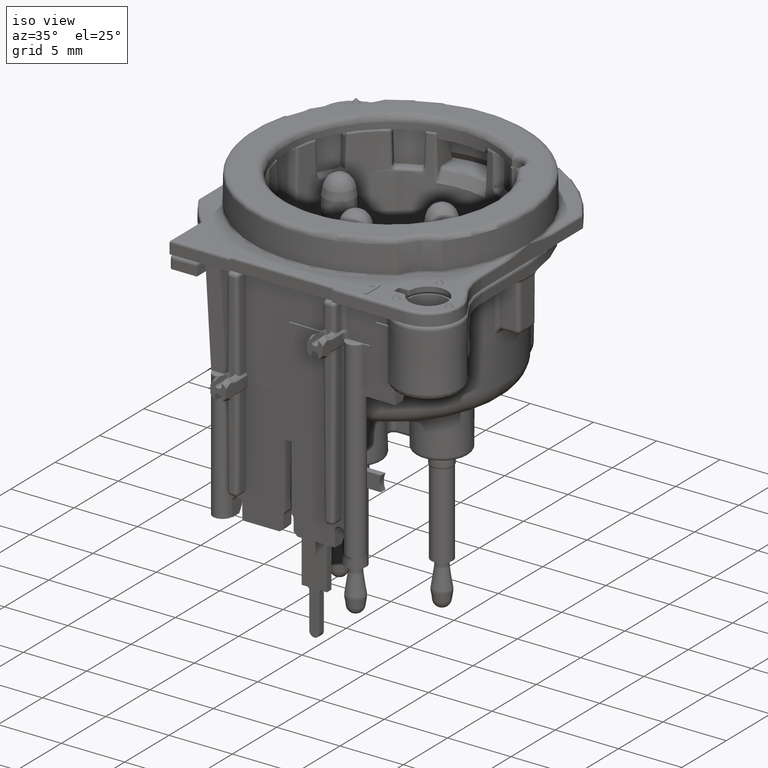
[diagram: clean part render]
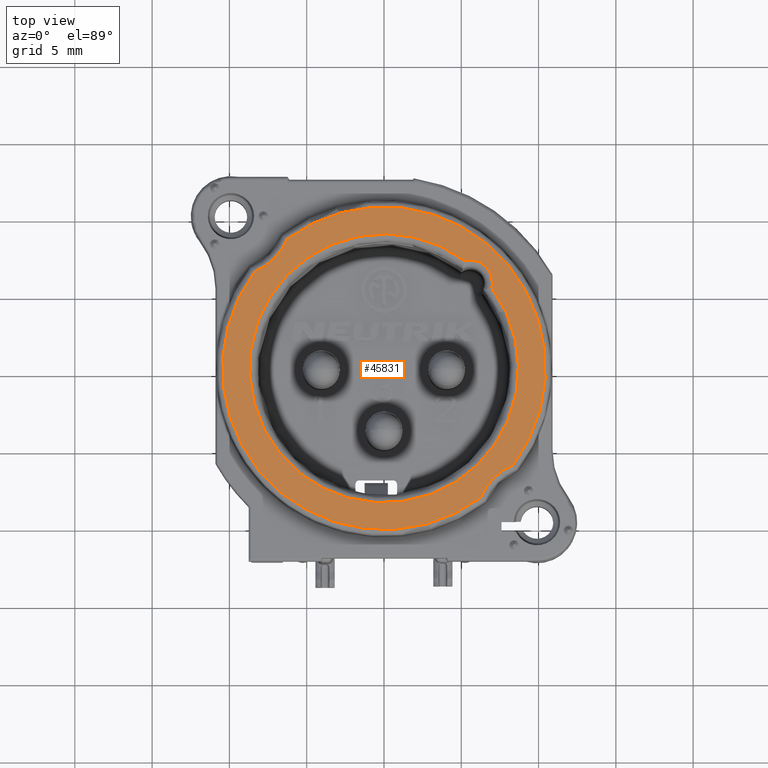
[diagram: tour spotlight — one face highlighted and labeled with its STEP entity id]
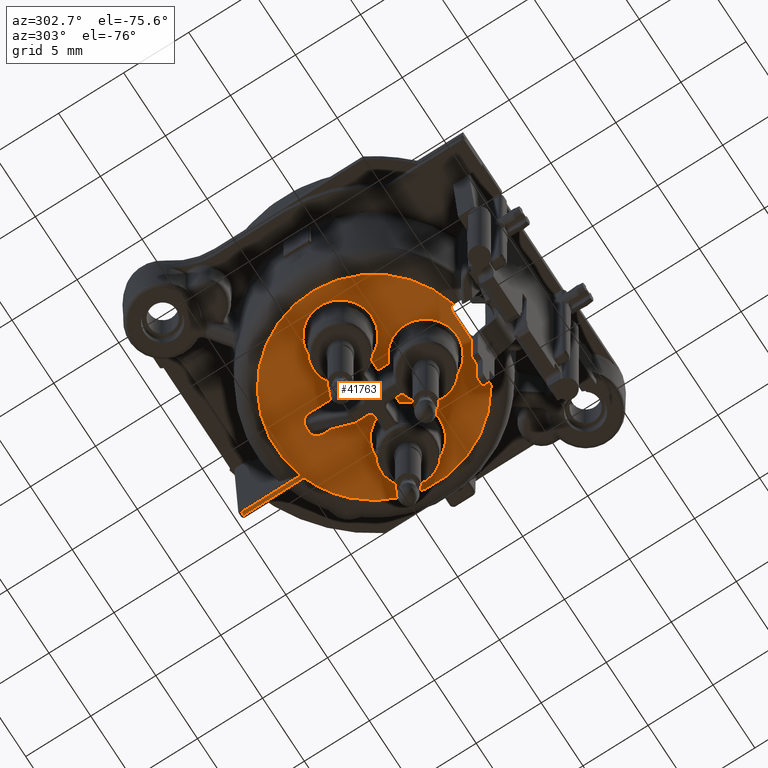
[diagram: tour spotlight — one face highlighted and labeled with its STEP entity id]
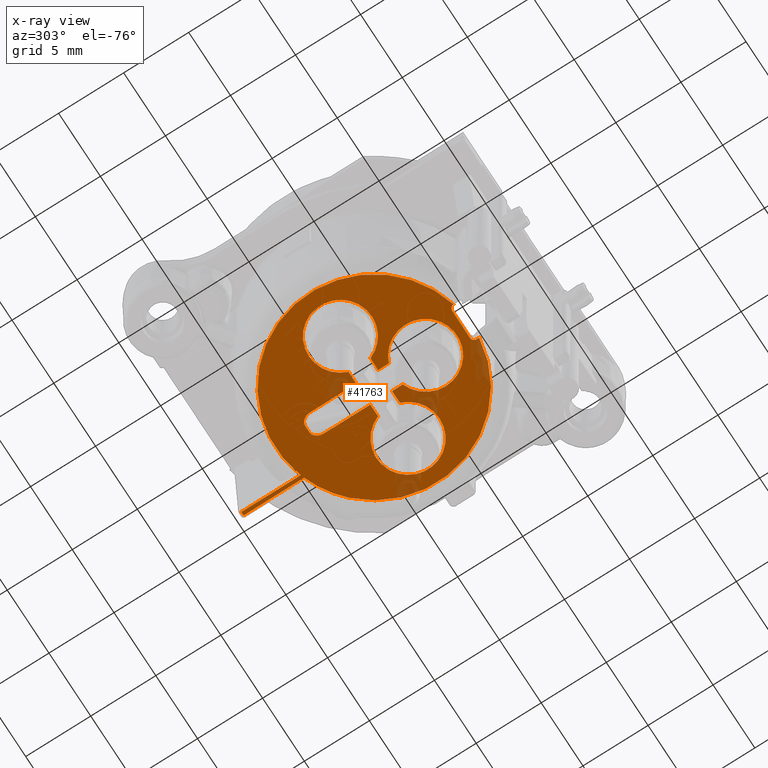
[diagram: x-ray of the same camera — body ghosted, this tour face saturated]
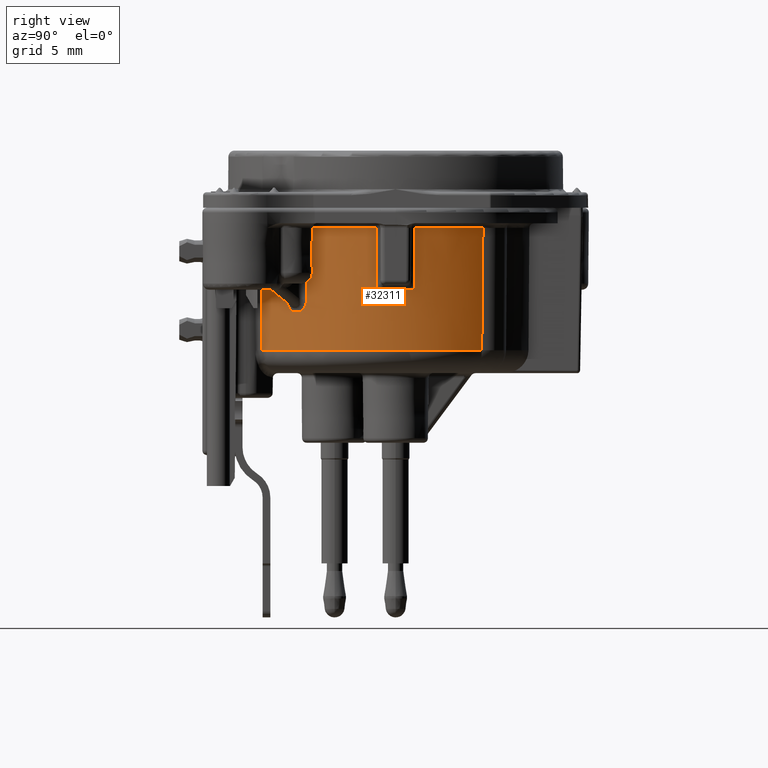
[diagram: tour spotlight — one face highlighted and labeled with its STEP entity id]
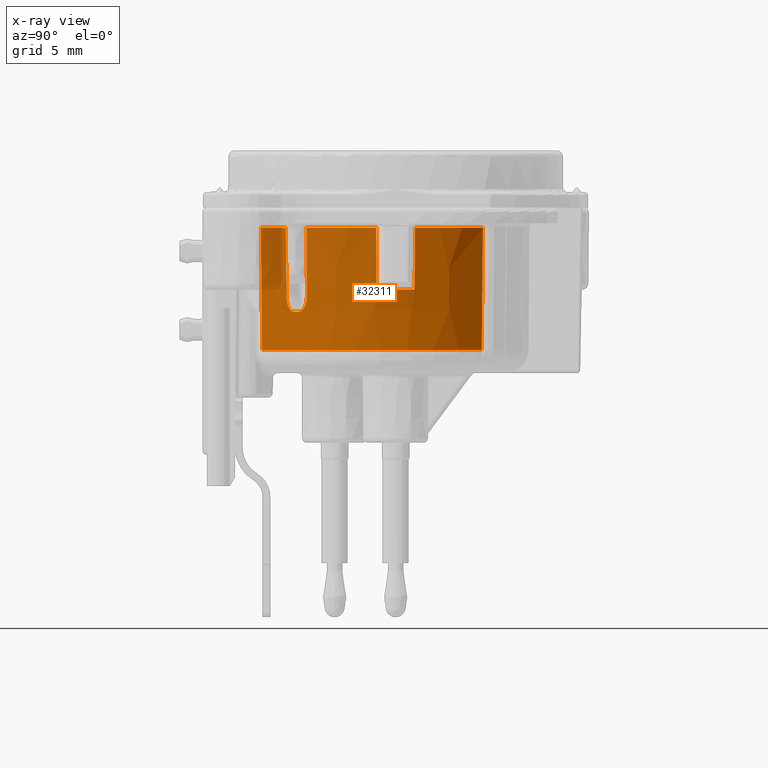
[diagram: x-ray of the same camera — body ghosted, this tour face saturated]
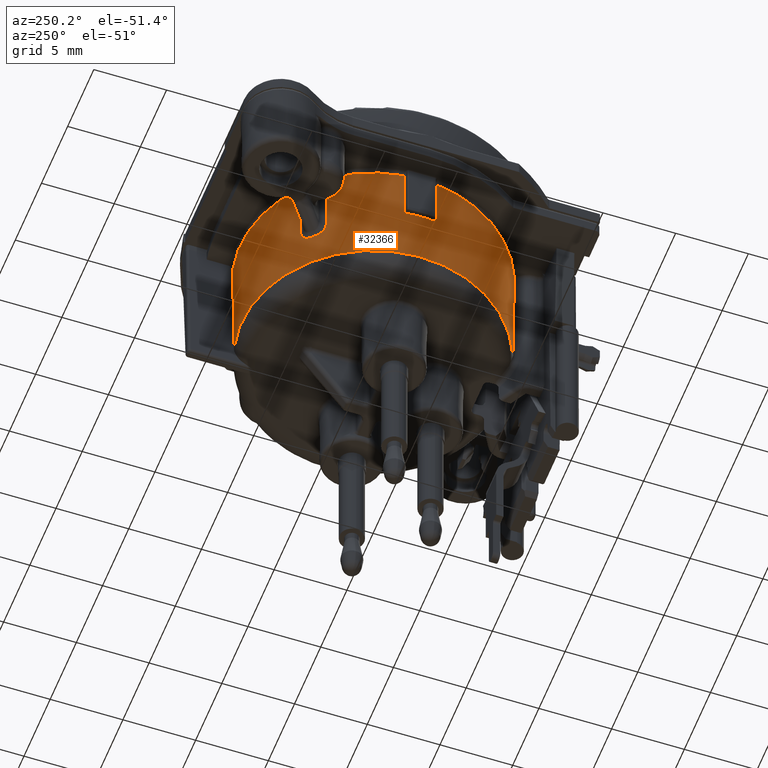
[diagram: tour spotlight — one face highlighted and labeled with its STEP entity id]
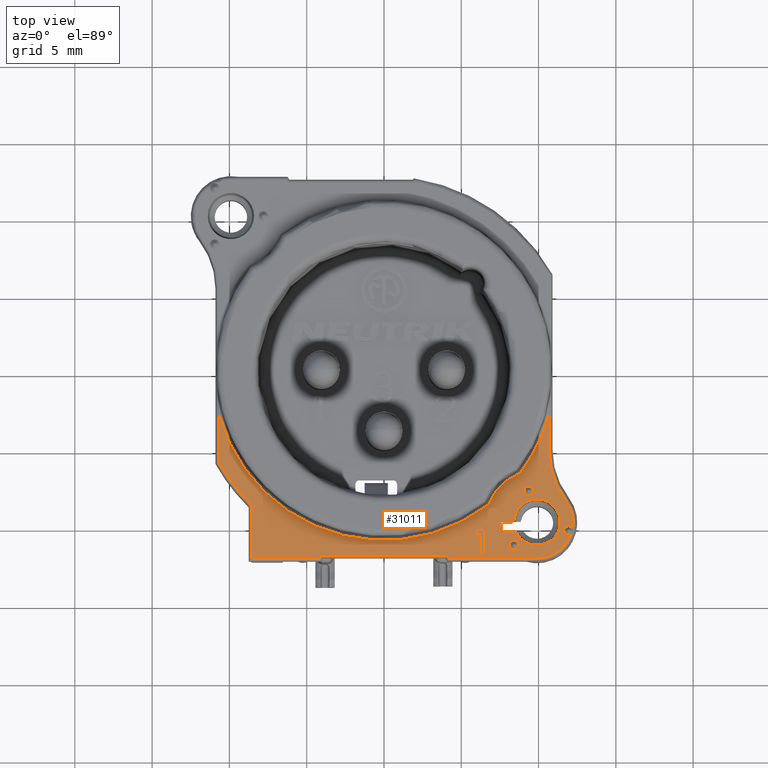
[diagram: tour spotlight — one face highlighted and labeled with its STEP entity id]
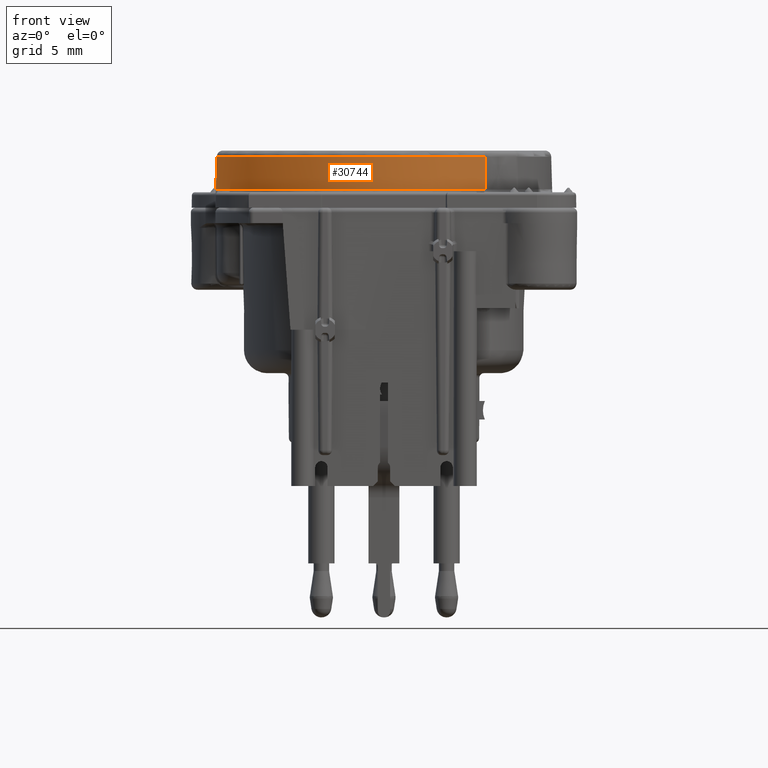
[diagram: tour spotlight — one face highlighted and labeled with its STEP entity id]
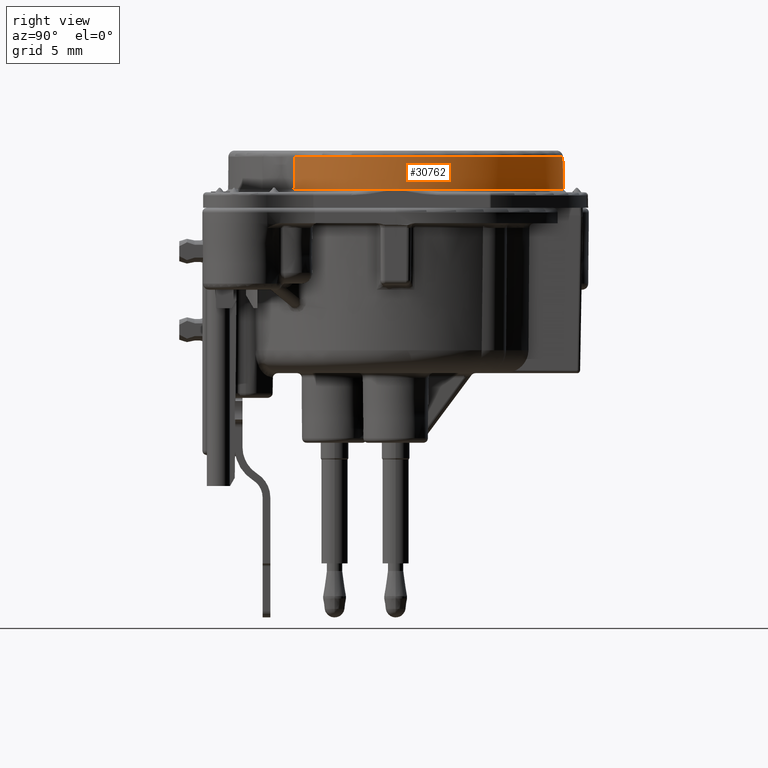
[diagram: tour spotlight — one face highlighted and labeled with its STEP entity id]
A machine part: a face-by-face anatomy tour. The part has 1484 B-rep faces; the first image is the clean iso view, then the 7 largest visible faces are spotlighted one at a time (largest first), each with its STEP entity span.

Face 1 — top view, entity #45831. In plain terms, the highlighted planar face has unit normal (0, 0, -1).
Definition (entity closure, byte-faithful):
#16010=CARTESIAN_POINT('',(9.9E0,-9.9E0,3.7E0));
#16011=DIRECTION('',(0.E0,0.E0,-1.E0));
#16012=DIRECTION('',(-9.215419853096E-1,3.882787263186E-1,0.E0));
#16013=AXIS2_PLACEMENT_3D('',#16010,#16011,#16012);
#16015=CARTESIAN_POINT('',(0.E0,0.E0,3.7E0));
#16016=DIRECTION('',(0.E0,0.E0,-1.E0));
#16017=DIRECTION('',(5.987928741060E-1,-8.009039230269E-1,0.E0));
#16018=AXIS2_PLACEMENT_3D('',#16015,#16016,#16017);
#16020=CARTESIAN_POINT('',(-9.9E0,9.9E0,3.7E0));
#16021=DIRECTION('',(0.E0,0.E0,-1.E0));
#16022=DIRECTION('',(9.215183286137E-1,-3.883348684177E-1,0.E0));
#16023=AXIS2_PLACEMENT_3D('',#16020,#16021,#16022);
#16025=CARTESIAN_POINT('',(0.E0,0.E0,3.7E0));
#16026=DIRECTION('',(0.E0,0.E0,-1.E0));
#16027=DIRECTION('',(-5.988091635734E-1,8.008917440082E-1,0.E0));
#16028=AXIS2_PLACEMENT_3D('',#16025,#16026,#16027);
#16289=CARTESIAN_POINT('',(5.515432893255E0,5.515432893255E0,3.7E0));
#16290=DIRECTION('',(0.E0,0.E0,-1.E0));
#16291=DIRECTION('',(-2.150937864699E-1,9.765933969785E-1,0.E0));
#16292=AXIS2_PLACEMENT_3D('',#16289,#16290,#16291);
#16302=CARTESIAN_POINT('',(6.980322988723E0,5.192792213550E0,3.7E0));
#16314=CARTESIAN_POINT('',(0.E0,0.E0,3.7E0));
#16315=DIRECTION('',(0.E0,0.E0,-1.E0));
#16316=DIRECTION('',(8.023359757153E-1,5.968726682242E-1,0.E0));
#16317=AXIS2_PLACEMENT_3D('',#16314,#16315,#16316);
#16327=CARTESIAN_POINT('',(5.192792213550E0,6.980322988723E0,3.7E0));
#21457=CARTESIAN_POINT('',(6.252847708498E0,-8.363323788814E0,3.7E0));
#21458=CARTESIAN_POINT('',(8.363047433668E0,-6.252964159173E0,3.7E0));
#21459=VERTEX_POINT('',#21457);
#21460=VERTEX_POINT('',#21458);
#21465=CARTESIAN_POINT('',(-8.363070010674E0,6.253116776629E0,3.7E0));
#21466=VERTEX_POINT('',#21465);
#21475=CARTESIAN_POINT('',(-6.252941333720E0,8.363101597325E0,3.7E0));
#21476=VERTEX_POINT('',#21475);
#21602=VERTEX_POINT('',#16327);
#21603=VERTEX_POINT('',#16302);
#45811=CARTESIAN_POINT('',(0.E0,0.E0,3.7E0));
#45812=DIRECTION('',(0.E0,0.E0,-1.E0));
#45813=DIRECTION('',(0.E0,-1.E0,0.E0));
#45814=AXIS2_PLACEMENT_3D('',#45811,#45812,#45813);
#45815=PLANE('',#45814);
#45817=ORIENTED_EDGE('',*,*,#45816,.F.);
#45819=ORIENTED_EDGE('',*,*,#45818,.T.);
#45821=ORIENTED_EDGE('',*,*,#45820,.F.);
#45822=ORIENTED_EDGE('',*,*,#45802,.T.);
#45823=EDGE_LOOP('',(#45817,#45819,#45821,#45822));
#45824=FACE_OUTER_BOUND('',#45823,.F.);
#45826=ORIENTED_EDGE('',*,*,#45825,.F.);
#45828=ORIENTED_EDGE('',*,*,#45827,.F.);
#45829=EDGE_LOOP('',(#45826,#45828));
#45830=FACE_BOUND('',#45829,.F.);
#45831=ADVANCED_FACE('',(#45824,#45830),#45815,.F.);
#16014=CIRCLE('',#16013,3.957662645481E0);
#16019=CIRCLE('',#16018,1.044233735452E1);
#16024=CIRCLE('',#16023,3.957662645481E0);
#16029=CIRCLE('',#16028,1.044233735452E1);
#16293=CIRCLE('',#16292,1.5E0);
#16318=CIRCLE('',#16317,8.7E0);
#45802=EDGE_CURVE('',#21476,#21460,#16029,.T.);
#45816=EDGE_CURVE('',#21459,#21460,#16014,.T.);
#45818=EDGE_CURVE('',#21459,#21466,#16019,.T.);
#45820=EDGE_CURVE('',#21476,#21466,#16024,.T.);
#45825=EDGE_CURVE('',#21602,#21603,#16293,.T.);
#45827=EDGE_CURVE('',#21603,#21602,#16318,.T.);

Face 2 — auxiliary view, entity #41763. An x-ray twin of the same camera follows (body ghosted, this face saturated) — the face is partly hidden behind the body. In plain terms, the highlighted planar face has unit normal (0, 0, -1).
Definition (entity closure, byte-faithful):
#8977=CARTESIAN_POINT('',(0.E0,0.E0,-1.07E1));
#8978=DIRECTION('',(0.E0,0.E0,-1.E0));
#8979=DIRECTION('',(7.071067824785E-1,7.071067798946E-1,0.E0));
#8980=AXIS2_PLACEMENT_3D('',#8977,#8978,#8979);
#8996=CARTESIAN_POINT('',(0.E0,0.E0,-1.07E1));
#8997=DIRECTION('',(0.E0,0.E0,-1.E0));
#8998=DIRECTION('',(-2.481705752145E-1,-9.687163494015E-1,0.E0));
#8999=AXIS2_PLACEMENT_3D('',#8996,#8997,#8998);
#9027=CARTESIAN_POINT('',(-1.875179796086E0,-7.319632172208E0,-1.07E1));
#9043=CARTESIAN_POINT('',(0.E0,0.E0,-1.07E1));
#9044=DIRECTION('',(0.E0,0.E0,-1.E0));
#9045=DIRECTION('',(3.486159743257E-1,9.372656520138E-1,0.E0));
#9046=AXIS2_PLACEMENT_3D('',#9043,#9044,#9045);
#9048=CARTESIAN_POINT('',(5.342907192088E0,5.342907187207E0,-1.07E1));
#13645=DIRECTION('',(1.E0,-2.038416370754E-13,0.E0));
#13646=VECTOR('',#13645,9.248153237289E-1);
#13647=CARTESIAN_POINT('',(-1.761479591966E0,-8.366642682367E-1,-1.07E1));
#13648=LINE('',#13647,#13646);
#13649=CARTESIAN_POINT('',(-4.05E0,0.E0,-1.070000000020E1));
#13650=DIRECTION('',(0.E0,0.E0,1.E0));
#13651=DIRECTION('',(9.392021863448E-1,3.433646067450E-1,0.E0));
#13652=AXIS2_PLACEMENT_3D('',#13649,#13650,#13651);
#13654=DIRECTION('',(-1.E0,-5.127133379155E-12,0.E0));
#13655=VECTOR('',#13654,9.248153237342E-1);
#13656=CARTESIAN_POINT('',(-8.366642682369E-1,8.366642682369E-1,-1.07E1));
#13657=LINE('',#13656,#13655);
#13658=DIRECTION('',(1.760453575040E-12,-1.E0,-2.027022303147E-7));
#13659=VECTOR('',#13658,3.569897874390E0);
#13660=CARTESIAN_POINT('',(-8.366642682432E-1,4.406562142626E0,
-1.069999927637E1));
#13661=LINE('',#13660,#13659);
#13662=CARTESIAN_POINT('',(-2.397681388890E-1,5.150669043300E0,
-1.070000202398E1));
#13663=CARTESIAN_POINT('',(-2.783415694547E-1,5.150637337059E0,
-1.070001320997E1));
#13664=CARTESIAN_POINT('',(-3.551468960677E-1,5.141512569692E0,
-1.069999387325E1));
#13665=CARTESIAN_POINT('',(-4.699395376217E-1,5.099018438615E0,
-1.070000162867E1));
#13666=CARTESIAN_POINT('',(-5.825121294983E-1,5.023346547474E0,
-1.069999961206E1));
#13667=CARTESIAN_POINT('',(-6.828660104958E-1,4.915003598360E0,
-1.069999992310E1));
#13668=CARTESIAN_POINT('',(-7.647257560148E-1,4.775945939416E0,
-1.070000069555E1));
#13669=CARTESIAN_POINT('',(-8.217907920520E-1,4.604964031217E0,
-1.069999729471E1));
#13670=CARTESIAN_POINT('',(-8.366685311955E-1,4.475598725773E0,
-1.070000584864E1));
#13671=CARTESIAN_POINT('',(-8.366642682432E-1,4.406562142626E0,
-1.069999927637E1));
#13673=DIRECTION('',(-1.E0,-1.023504200552E-11,-1.357274106403E-7));
#13674=VECTOR('',#13673,4.795362778791E-1);
#13675=CARTESIAN_POINT('',(2.397681389901E-1,5.150669043304E0,
-1.070000195889E1));
#13676=LINE('',#13675,#13674);
#13677=CARTESIAN_POINT('',(8.366642682404E-1,4.406562142561E0,
-1.069999955438E1));
#13678=CARTESIAN_POINT('',(8.366692546447E-1,4.487025836820E0,
-1.070000608265E1));
#13679=CARTESIAN_POINT('',(8.165711295225E-1,4.635962330782E0,
-1.069999714121E1));
#13680=CARTESIAN_POINT('',(7.414263922164E-1,4.827360917552E0,
-1.070000088180E1));
#13681=CARTESIAN_POINT('',(6.352642776556E-1,4.975470681710E0,
-1.069999933158E1));
#13682=CARTESIAN_POINT('',(5.072811179384E-1,5.080623956983E0,
-1.070000179188E1));
#13683=CARTESIAN_POINT('',(3.714033893573E-1,5.139074737153E0,
-1.069999350090E1));
#13684=CARTESIAN_POINT('',(2.836330747070E-1,5.150635189966E0,
-1.070001396998E1));
#13685=CARTESIAN_POINT('',(2.397681389901E-1,5.150669043304E0,
-1.070000195889E1));
#13687=DIRECTION('',(9.708042962787E-13,1.E0,1.248275689062E-7));
#13688=VECTOR('',#13687,3.569897874324E0);
#13689=CARTESIAN_POINT('',(8.366642682369E-1,8.366642682369E-1,-1.07E1));
#13690=LINE('',#13689,#13688);
#13691=DIRECTION('',(-1.E0,2.027612043701E-13,0.E0));
#13692=VECTOR('',#13691,9.248153237289E-1);
#13693=CARTESIAN_POINT('',(1.761479591966E0,8.366642682367E-1,-1.07E1));
#13694=LINE('',#13693,#13692);
#13695=CARTESIAN_POINT('',(4.05E0,0.E0,-1.070000000020E1));
#13696=DIRECTION('',(0.E0,0.E0,1.E0));
#13697=DIRECTION('',(-9.392021863448E-1,-3.433646067450E-1,0.E0));
#13698=AXIS2_PLACEMENT_3D('',#13695,#13696,#13697);
#13700=DIRECTION('',(1.E0,5.126413090685E-12,0.E0));
#13701=VECTOR('',#13700,9.248153237342E-1);
#13702=CARTESIAN_POINT('',(8.366642682369E-1,-8.366642682369E-1,-1.07E1));
#13703=LINE('',#13702,#13701);
#13704=DIRECTION('',(2.262670019220E-13,1.E0,0.E0));
#13705=VECTOR('',#13704,8.248153237289E-1);
#13706=CARTESIAN_POINT('',(8.366642682367E-1,-1.661479591966E0,-1.07E1));
#13707=LINE('',#13706,#13705);
#13708=CARTESIAN_POINT('',(0.E0,-3.95E0,-1.070000000020E1));
#13709=DIRECTION('',(0.E0,0.E0,1.E0));
#13710=DIRECTION('',(-3.433646067450E-1,9.392021863448E-1,0.E0));
#13711=AXIS2_PLACEMENT_3D('',#13708,#13709,#13710);
#13713=DIRECTION('',(5.748743239159E-12,-1.E0,0.E0));
#13714=VECTOR('',#13713,8.248153237342E-1);
#13715=CARTESIAN_POINT('',(-8.366642682369E-1,-8.366642682369E-1,-1.07E1));
#13716=LINE('',#13715,#13714);
#13717=DIRECTION('',(0.E0,-1.E0,0.E0));
#13718=VECTOR('',#13717,4.652156086115E0);
#13719=CARTESIAN_POINT('',(2.634146417573E0,1.173414641757E1,-1.07E1));
#13720=LINE('',#13719,#13718);
#13721=DIRECTION('',(1.E0,0.E0,0.E0));
#13722=VECTOR('',#13721,2.682928351463E-1);
#13723=CARTESIAN_POINT('',(2.365853582427E0,1.173414641757E1,-1.07E1));
#13724=LINE('',#13723,#13722);
#13725=DIRECTION('',(0.E0,1.E0,0.E0));
#13726=VECTOR('',#13725,4.558071499445E0);
#13727=CARTESIAN_POINT('',(2.365853582427E0,7.176074918129E0,-1.07E1));
#13728=LINE('',#13727,#13726);
#13729=DIRECTION('',(-5.655120650110E-14,1.E0,0.E0));
#13730=VECTOR('',#13729,1.963217220845E-2);
#13731=CARTESIAN_POINT('',(-1.875179796086E0,-7.319632172208E0,-1.07E1));
#13732=LINE('',#13731,#13730);
#13733=DIRECTION('',(-1.E0,0.E0,0.E0));
#13734=VECTOR('',#13733,2.150153916677E0);
#13735=CARTESIAN_POINT('',(5.750769583383E-1,-7.E0,-1.07E1));
#13736=LINE('',#13735,#13734);
#13737=DIRECTION('',(0.E0,1.E0,0.E0));
#13738=VECTOR('',#13737,2.051565425779E-1);
#13739=CARTESIAN_POINT('',(8.751797960856E-1,-7.505156542578E0,-1.07E1));
#13740=LINE('',#13739,#13738);
#15382=CARTESIAN_POINT('',(-1.575076958338E0,-7.E0,-1.07E1));
#15383=CARTESIAN_POINT('',(-1.675094097963E0,-7.E0,-1.07E1));
#15384=CARTESIAN_POINT('',(-1.799405170322E0,-7.075723206890E0,-1.07E1));
#15385=CARTESIAN_POINT('',(-1.875179796086E0,-7.199982860375E0,-1.07E1));
#15386=CARTESIAN_POINT('',(-1.875179796086E0,-7.3E0,-1.07E1));
#15408=CARTESIAN_POINT('',(8.751797960856E-1,-7.3E0,-1.07E1));
#15409=CARTESIAN_POINT('',(8.751797960856E-1,-7.199982860375E0,-1.07E1));
#15410=CARTESIAN_POINT('',(7.994051703221E-1,-7.075723206890E0,-1.07E1));
#15411=CARTESIAN_POINT('',(6.750940979629E-1,-7.E0,-1.07E1));
#15412=CARTESIAN_POINT('',(5.750769583383E-1,-7.E0,-1.07E1));
#19527=VERTEX_POINT('',#9048);
#19557=CARTESIAN_POINT('',(8.751797960856E-1,-7.505156542578E0,-1.07E1));
#19558=VERTEX_POINT('',#19557);
#19957=VERTEX_POINT('',#9027);
#19961=VERTEX_POINT('',#15382);
#19962=VERTEX_POINT('',#15386);
#19969=CARTESIAN_POINT('',(8.751797960856E-1,-7.3E0,-1.07E1));
#19970=VERTEX_POINT('',#19969);
#19971=CARTESIAN_POINT('',(5.750769583383E-1,-7.E0,-1.07E1));
#19972=VERTEX_POINT('',#19971);
#20198=CARTESIAN_POINT('',(-1.761479591966E0,-8.366642682367E-1,-1.07E1));
#20199=CARTESIAN_POINT('',(-8.366642682369E-1,-8.366642682369E-1,-1.07E1));
#20200=VERTEX_POINT('',#20198);
#20201=VERTEX_POINT('',#20199);
#20206=CARTESIAN_POINT('',(-8.366642682322E-1,-1.661479591971E0,-1.07E1));
#20207=VERTEX_POINT('',#20206);
#20212=CARTESIAN_POINT('',(8.366605266540E-1,-1.661489826191E0,
-1.070000000020E1));
#20213=VERTEX_POINT('',#20212);
#20218=CARTESIAN_POINT('',(8.366642682369E-1,-8.366642682369E-1,-1.07E1));
#20219=VERTEX_POINT('',#20218);
#20224=CARTESIAN_POINT('',(1.761479591971E0,-8.366642682322E-1,-1.07E1));
#20225=VERTEX_POINT('',#20224);
#20230=CARTESIAN_POINT('',(1.761489826197E0,8.366605266518E-1,
-1.070000000020E1));
#20231=VERTEX_POINT('',#20230);
#20236=CARTESIAN_POINT('',(8.366642682369E-1,8.366642682369E-1,-1.07E1));
#20237=VERTEX_POINT('',#20236);
#20242=CARTESIAN_POINT('',(8.366642682404E-1,4.406562142561E0,
-1.069999955438E1));
#20243=VERTEX_POINT('',#20242);
#20245=VERTEX_POINT('',#13685);
#20248=CARTESIAN_POINT('',(-2.397681388890E-1,5.150669043300E0,
-1.070000202398E1));
#20249=VERTEX_POINT('',#20248);
#20251=VERTEX_POINT('',#13671);
#20254=CARTESIAN_POINT('',(-8.366642682369E-1,8.366642682369E-1,-1.07E1));
#20255=VERTEX_POINT('',#20254);
#20260=CARTESIAN_POINT('',(-1.761479591971E0,8.366642682322E-1,-1.07E1));
#20261=VERTEX_POINT('',#20260);
#21161=CARTESIAN_POINT('',(2.634146417573E0,1.173414641757E1,-1.07E1));
#21162=CARTESIAN_POINT('',(2.634146417573E0,7.081990331458E0,-1.07E1));
#21163=VERTEX_POINT('',#21161);
#21164=VERTEX_POINT('',#21162);
#21169=CARTESIAN_POINT('',(2.365853582427E0,1.173414641757E1,-1.07E1));
#21170=VERTEX_POINT('',#21169);
#21171=CARTESIAN_POINT('',(2.365853582427E0,7.176074918129E0,-1.07E1));
#21172=VERTEX_POINT('',#21171);
#41709=CARTESIAN_POINT('',(0.E0,0.E0,-1.07E1));
#41710=DIRECTION('',(0.E0,0.E0,-1.E0));
#41711=DIRECTION('',(0.E0,-1.E0,0.E0));
#41712=AXIS2_PLACEMENT_3D('',#41709,#41710,#41711);
#41713=PLANE('',#41712);
#41715=ORIENTED_EDGE('',*,*,#41714,.F.);
#41717=ORIENTED_EDGE('',*,*,#41716,.F.);
#41719=ORIENTED_EDGE('',*,*,#41718,.F.);
#41720=ORIENTED_EDGE('',*,*,#34497,.F.);
#41721=ORIENTED_EDGE('',*,*,#29837,.T.);
#41723=ORIENTED_EDGE('',*,*,#41722,.F.);
#41725=ORIENTED_EDGE('',*,*,#41724,.F.);
#41727=ORIENTED_EDGE('',*,*,#41726,.F.);
#41728=ORIENTED_EDGE('',*,*,#22796,.F.);
#41729=ORIENTED_EDGE('',*,*,#34484,.F.);
#41730=ORIENTED_EDGE('',*,*,#34519,.F.);
#41731=EDGE_LOOP('',(#41715,#41717,#41719,#41720,#41721,#41723,#41725,#41727,
#41728,#41729,#41730));
#41732=FACE_OUTER_BOUND('',#41731,.F.);
#41734=ORIENTED_EDGE('',*,*,#41733,.F.);
#41736=ORIENTED_EDGE('',*,*,#41735,.F.);
#41738=ORIENTED_EDGE('',*,*,#41737,.F.);
#41740=ORIENTED_EDGE('',*,*,#41739,.F.);
#41742=ORIENTED_EDGE('',*,*,#41741,.F.);
#41744=ORIENTED_EDGE('',*,*,#41743,.F.);
#41746=ORIENTED_EDGE('',*,*,#41745,.F.);
#41748=ORIENTED_EDGE('',*,*,#41747,.F.);
#41750=ORIENTED_EDGE('',*,*,#41749,.F.);
#41752=ORIENTED_EDGE('',*,*,#41751,.F.);
#41754=ORIENTED_EDGE('',*,*,#41753,.F.);
#41756=ORIENTED_EDGE('',*,*,#41755,.F.);
#41758=ORIENTED_EDGE('',*,*,#41757,.F.);
#41760=ORIENTED_EDGE('',*,*,#41759,.F.);
#41761=EDGE_LOOP('',(#41734,#41736,#41738,#41740,#41742,#41744,#41746,#41748,
#41750,#41752,#41754,#41756,#41758,#41760));
#41762=FACE_BOUND('',#41761,.F.);
#41763=ADVANCED_FACE('',(#41732,#41762),#41713,.T.);
#8981=CIRCLE('',#8980,7.556011805448E0);
#9000=CIRCLE('',#8999,7.556011805448E0);
#9047=CIRCLE('',#9046,7.556011805448E0);
#13653=CIRCLE('',#13652,2.436653371421E0);
#13672=B_SPLINE_CURVE_WITH_KNOTS('',3,(#13662,#13663,#13664,#13665,#13666,
#13667,#13668,#13669,#13670,#13671),.UNSPECIFIED.,.F.,.F.,(4,1,1,1,1,1,1,4),(
0.E0,1.428571428571E-1,2.857142857143E-1,4.285714285714E-1,5.714285714286E-1,
7.142857142857E-1,8.571428571429E-1,1.E0),.UNSPECIFIED.);
#13686=B_SPLINE_CURVE_WITH_KNOTS('',3,(#13677,#13678,#13679,#13680,#13681,
#13682,#13683,#13684,#13685),.UNSPECIFIED.,.F.,.F.,(4,1,1,1,1,1,4),(0.E0,
1.666666666667E-1,3.333333333333E-1,5.E-1,6.666666666667E-1,8.333333333333E-1,
1.E0),.UNSPECIFIED.);
#13699=CIRCLE('',#13698,2.436653371421E0);
#13712=CIRCLE('',#13711,2.436653371427E0);
#15387=B_SPLINE_CURVE_WITH_KNOTS('',3,(#15382,#15383,#15384,#15385,#15386),
.UNSPECIFIED.,.F.,.F.,(4,1,4),(0.E0,5.E-1,1.E0),.UNSPECIFIED.);
#15413=B_SPLINE_CURVE_WITH_KNOTS('',3,(#15408,#15409,#15410,#15411,#15412),
.UNSPECIFIED.,.F.,.F.,(4,1,4),(0.E0,5.E-1,1.E0),.UNSPECIFIED.);
#22796=EDGE_CURVE('',#19558,#19970,#13740,.T.);
#29837=EDGE_CURVE('',#19957,#19962,#13732,.T.);
#34484=EDGE_CURVE('',#19527,#19558,#8981,.T.);
#34497=EDGE_CURVE('',#19957,#21172,#9000,.T.);
#34519=EDGE_CURVE('',#21164,#19527,#9047,.T.);
#41714=EDGE_CURVE('',#21163,#21164,#13720,.T.);
#41716=EDGE_CURVE('',#21170,#21163,#13724,.T.);
#41718=EDGE_CURVE('',#21172,#21170,#13728,.T.);
#41722=EDGE_CURVE('',#19961,#19962,#15387,.T.);
#41724=EDGE_CURVE('',#19972,#19961,#13736,.T.);
#41726=EDGE_CURVE('',#19970,#19972,#15413,.T.);
#41733=EDGE_CURVE('',#20200,#20201,#13648,.T.);
#41735=EDGE_CURVE('',#20261,#20200,#13653,.T.);
#41737=EDGE_CURVE('',#20255,#20261,#13657,.T.);
#41739=EDGE_CURVE('',#20251,#20255,#13661,.T.);
#41741=EDGE_CURVE('',#20249,#20251,#13672,.T.);
#41743=EDGE_CURVE('',#20245,#20249,#13676,.T.);
#41745=EDGE_CURVE('',#20243,#20245,#13686,.T.);
#41747=EDGE_CURVE('',#20237,#20243,#13690,.T.);
#41749=EDGE_CURVE('',#20231,#20237,#13694,.T.);
#41751=EDGE_CURVE('',#20225,#20231,#13699,.T.);
#41753=EDGE_CURVE('',#20219,#20225,#13703,.T.);
#41755=EDGE_CURVE('',#20213,#20219,#13707,.T.);
#41757=EDGE_CURVE('',#20207,#20213,#13712,.T.);
#41759=EDGE_CURVE('',#20201,#20207,#13716,.T.);

Face 3 — right view, entity #32311. An x-ray twin of the same camera follows (body ghosted, this face saturated) — the face is partly hidden behind the body. In plain terms, the highlighted conical surface has half-angle 0.693 deg.
Definition (entity closure, byte-faithful):
#7628=CARTESIAN_POINT('',(0.E0,0.E0,-5.296371233235E0));
#7629=DIRECTION('',(0.E0,0.E0,1.E0));
#7630=DIRECTION('',(9.909461972762E-1,-1.342595773265E-1,0.E0));
#7631=AXIS2_PLACEMENT_3D('',#7628,#7629,#7630);
#7633=CARTESIAN_POINT('',(9.020922995686E0,1.222210965464E0,-5.296371233235E0));
#7634=CARTESIAN_POINT('',(9.028303227150E0,1.227885365154E0,-4.628816835952E0));
#7635=CARTESIAN_POINT('',(9.043046634377E0,1.239227398368E0,-3.294595770753E0));
#7636=CARTESIAN_POINT('',(9.057756086848E0,1.250555878576E0,-1.962150168042E0));
#7637=CARTESIAN_POINT('',(9.065102362832E0,1.256216726978E0,-1.296371233236E0));
#7639=CARTESIAN_POINT('',(0.E0,0.E0,-1.296371233234E0));
#7640=DIRECTION('',(0.E0,0.E0,1.E0));
#7641=DIRECTION('',(9.905342923655E-1,1.372654932896E-1,0.E0));
#7642=AXIS2_PLACEMENT_3D('',#7639,#7640,#7641);
#7644=CARTESIAN_POINT('',(7.141560531053E0,5.568555176567E0,-9.212067490069E0));
#7645=CARTESIAN_POINT('',(7.148031973076E0,5.577601764641E0,-8.330330361038E0));
#7646=CARTESIAN_POINT('',(7.160953774541E0,5.595687397747E0,-6.568322840888E0));
#7647=CARTESIAN_POINT('',(7.180282922420E0,5.622800113218E0,-3.928899291880E0));
#7648=CARTESIAN_POINT('',(7.193113353401E0,5.640851864566E0,-2.173301293185E0));
#7649=CARTESIAN_POINT('',(7.199515729646E0,5.649866126711E0,-1.296897884056E0));
#7651=CARTESIAN_POINT('',(7.141560531053E0,5.568555176567E0,-9.212067490069E0));
#7652=CARTESIAN_POINT('',(7.141553096548E0,5.568544783689E0,-9.213080445044E0));
#7653=CARTESIAN_POINT('',(7.141535786267E0,5.568527132350E0,-9.215106174966E0));
#7654=CARTESIAN_POINT('',(7.141513598370E0,5.568515747312E0,-9.217131353627E0));
#7655=CARTESIAN_POINT('',(7.141501285638E0,5.56851162E0,-9.218143833828E0));
#7657=CARTESIAN_POINT('',(2.718787907992E0,-8.638144655068E0,
-9.218136702175E0));
#7658=CARTESIAN_POINT('',(2.724390182923E0,-8.647573127461E0,
-8.335632079075E0));
#7659=CARTESIAN_POINT('',(2.735355339700E0,-8.666484952721E0,
-6.572151778527E0));
#7660=CARTESIAN_POINT('',(2.751098448968E0,-8.695008931574E0,
-3.931561428491E0));
#7661=CARTESIAN_POINT('',(2.761133429206E0,-8.714129045406E0,
-2.174253612450E0));
#7662=CARTESIAN_POINT('',(2.766037765953E0,-8.723714598258E0,
-1.296371233211E0));
#7664=CARTESIAN_POINT('',(0.E0,0.E0,-1.296371230180E0));
#7665=DIRECTION('',(0.E0,0.E0,1.E0));
#7666=DIRECTION('',(3.022420653925E-1,-9.532312069520E-1,0.E0));
#7667=AXIS2_PLACEMENT_3D('',#7664,#7665,#7666);
#7669=CARTESIAN_POINT('',(5.750900365710E0,-7.048351896608E0,
-5.835396744070E0));
#7670=CARTESIAN_POINT('',(5.751960254193E0,-7.055569262747E0,
-5.317723832211E0));
#7671=CARTESIAN_POINT('',(5.754059763312E0,-7.069870864129E0,
-4.292009626323E0));
#7672=CARTESIAN_POINT('',(5.757009559729E0,-7.090067271156E0,
-2.842305587237E0));
#7673=CARTESIAN_POINT('',(5.759099093447E0,-7.104379879758E0,
-1.815135865644E0));
#7674=CARTESIAN_POINT('',(5.760150216361E0,-7.111604124241E0,
-1.296371287702E0));
#7676=CARTESIAN_POINT('',(6.318259030782E0,-6.529537881603E0,
-6.731217375783E0));
#7677=CARTESIAN_POINT('',(6.274155316317E0,-6.572182528248E0,
-6.731876870355E0));
#7678=CARTESIAN_POINT('',(6.187152752046E0,-6.654947227062E0,
-6.716362876336E0));
#7679=CARTESIAN_POINT('',(6.057228209244E0,-6.774542233066E0,
-6.641918919606E0));
#7680=CARTESIAN_POINT('',(5.937835988443E0,-6.881290980067E0,
-6.514798192910E0));
#7681=CARTESIAN_POINT('',(5.837176729038E0,-6.969510883637E0,
-6.334783690763E0));
#7682=CARTESIAN_POINT('',(5.767451855216E0,-7.030738795402E0,
-6.101931340938E0));
#7683=CARTESIAN_POINT('',(5.750710796713E0,-7.047062580932E0,
-5.928266444634E0));
#7684=CARTESIAN_POINT('',(5.750900365710E0,-7.048351896608E0,
-5.835396744070E0));
#7686=CARTESIAN_POINT('',(6.529538068797E0,-6.318259216311E0,
-6.731217378888E0));
#7687=CARTESIAN_POINT('',(6.494911579656E0,-6.354052241984E0,
-6.730720330564E0));
#7688=CARTESIAN_POINT('',(6.425055588404E0,-6.425055136984E0,
-6.730223078900E0));
#7689=CARTESIAN_POINT('',(6.354052286021E0,-6.494911169917E0,
-6.730720324677E0));
#7690=CARTESIAN_POINT('',(6.318259030782E0,-6.529537881603E0,
-6.731217375783E0));
#7692=CARTESIAN_POINT('',(7.048351913582E0,-5.750900379561E0,
-5.835396744337E0));
#7693=CARTESIAN_POINT('',(7.047065138107E0,-5.750711226879E0,
-5.928085137278E0));
#7694=CARTESIAN_POINT('',(7.030804629385E0,-5.767379434969E0,
-6.101492438916E0));
#7695=CARTESIAN_POINT('',(6.969652386518E0,-5.837014183149E0,
-6.334402296856E0));
#7696=CARTESIAN_POINT('',(6.881477374590E0,-5.937625423716E0,
-6.514513890245E0));
#7697=CARTESIAN_POINT('',(6.774735287454E0,-6.057013979263E0,
-6.641733234748E0));
#7698=CARTESIAN_POINT('',(6.655289421166E0,-6.186787242572E0,
-6.716230901275E0));
#7699=CARTESIAN_POINT('',(6.572326490907E0,-6.274006611403E0,
-6.731879495503E0));
#7700=CARTESIAN_POINT('',(6.529538068797E0,-6.318259216311E0,
-6.731217378888E0));
#7702=CARTESIAN_POINT('',(7.111604123905E0,-5.760150216155E0,
-1.296371287697E0));
#7703=CARTESIAN_POINT('',(7.104968444612E0,-5.759184729097E0,
-1.772871685183E0));
#7704=CARTESIAN_POINT('',(7.091436444185E0,-5.757209340146E0,
-2.744021631970E0));
#7705=CARTESIAN_POINT('',(7.070844533468E0,-5.754202390587E0,
-4.222150021307E0));
#7706=CARTESIAN_POINT('',(7.055984712646E0,-5.752021275422E0,
-5.287926484275E0));
#7707=CARTESIAN_POINT('',(7.048351913582E0,-5.750900379561E0,
-5.835396744337E0));
#7709=CARTESIAN_POINT('',(0.E0,0.E0,-1.296371242199E0));
#7710=DIRECTION('',(0.E0,0.E0,1.E0));
#7711=DIRECTION('',(7.770771924413E-1,-6.294053042258E-1,0.E0));
#7712=AXIS2_PLACEMENT_3D('',#7709,#7710,#7711);
#7714=CARTESIAN_POINT('',(9.065102362832E0,-1.256216726980E0,
-1.296371233236E0));
#7715=CARTESIAN_POINT('',(9.057756086847E0,-1.250555878577E0,
-1.962150168052E0));
#7716=CARTESIAN_POINT('',(9.043046634377E0,-1.239227398367E0,
-3.294595770774E0));
#7717=CARTESIAN_POINT('',(9.028303227150E0,-1.227885365154E0,
-4.628816835962E0));
#7718=CARTESIAN_POINT('',(9.020922995686E0,-1.222210965464E0,
-5.296371233235E0));
#7876=CARTESIAN_POINT('',(9.020922995686E0,1.222210965464E0,-5.296371233235E0));
#8007=CARTESIAN_POINT('',(9.020922995686E0,-1.222210965464E0,
-5.296371233235E0));
#8924=CARTESIAN_POINT('',(2.718787907992E0,-8.638144655068E0,
-9.218136702175E0));
#8926=CARTESIAN_POINT('',(0.E0,0.E0,-9.218143833828E0));
#8927=DIRECTION('',(0.E0,0.E0,1.E0));
#8928=DIRECTION('',(3.002227761737E-1,-9.538691129639E-1,0.E0));
#8929=AXIS2_PLACEMENT_3D('',#8926,#8927,#8928);
#19514=VERTEX_POINT('',#7651);
#19515=VERTEX_POINT('',#7655);
#19946=VERTEX_POINT('',#8924);
#20064=VERTEX_POINT('',#7676);
#20065=VERTEX_POINT('',#7684);
#20067=VERTEX_POINT('',#7686);
#20069=VERTEX_POINT('',#7692);
#20309=CARTESIAN_POINT('',(9.065102362716E0,1.256216727810E0,
-1.296371233234E0));
#20310=CARTESIAN_POINT('',(7.199520546526E0,5.649873026352E0,
-1.296371233234E0));
#20311=VERTEX_POINT('',#20309);
#20312=VERTEX_POINT('',#20310);
#20345=CARTESIAN_POINT('',(7.111600625462E0,-5.760147381420E0,
-1.296371242199E0));
#20346=CARTESIAN_POINT('',(9.065102362608E0,-1.256216727795E0,
-1.296371242199E0));
#20347=VERTEX_POINT('',#20345);
#20348=VERTEX_POINT('',#20346);
#20420=CARTESIAN_POINT('',(2.766037767319E0,-8.723714600615E0,
-1.296371006807E0));
#20421=VERTEX_POINT('',#20420);
#20422=CARTESIAN_POINT('',(5.760147381511E0,-7.111600625575E0,
-1.296371230180E0));
#20423=VERTEX_POINT('',#20422);
#20500=VERTEX_POINT('',#7876);
#20522=VERTEX_POINT('',#8007);
#32274=CARTESIAN_POINT('',(0.E0,0.E0,-5.257262725784E0));
#32275=DIRECTION('',(0.E0,0.E0,1.E0));
#32276=DIRECTION('',(0.E0,1.E0,0.E0));
#32277=AXIS2_PLACEMENT_3D('',#32274,#32275,#32276);
#32278=CONICAL_SURFACE('',#32277,9.103815952904E0,6.930603027112E-1);
#32280=ORIENTED_EDGE('',*,*,#32279,.T.);
#32282=ORIENTED_EDGE('',*,*,#32281,.T.);
#32284=ORIENTED_EDGE('',*,*,#32283,.T.);
#32286=ORIENTED_EDGE('',*,*,#32285,.F.);
#32288=ORIENTED_EDGE('',*,*,#32287,.T.);
#32290=ORIENTED_EDGE('',*,*,#32289,.F.);
#32292=ORIENTED_EDGE('',*,*,#32291,.T.);
#32294=ORIENTED_EDGE('',*,*,#32293,.T.);
#32296=ORIENTED_EDGE('',*,*,#32295,.F.);
#32298=ORIENTED_EDGE('',*,*,#32297,.F.);
#32300=ORIENTED_EDGE('',*,*,#32299,.F.);
#32302=ORIENTED_EDGE('',*,*,#32301,.F.);
#32304=ORIENTED_EDGE('',*,*,#32303,.F.);
#32306=ORIENTED_EDGE('',*,*,#32305,.T.);
#32308=ORIENTED_EDGE('',*,*,#32307,.T.);
#32309=EDGE_LOOP('',(#32280,#32282,#32284,#32286,#32288,#32290,#32292,#32294,
#32296,#32298,#32300,#32302,#32304,#32306,#32308));
#32310=FACE_OUTER_BOUND('',#32309,.F.);
#32311=ADVANCED_FACE('',(#32310),#32278,.T.);
#7632=CIRCLE('',#7631,9.103342866120E0);
#7638=B_SPLINE_CURVE_WITH_KNOTS('',3,(#7633,#7634,#7635,#7636,#7637),
.UNSPECIFIED.,.F.,.F.,(4,1,4),(0.E0,5.E-1,1.E0),.UNSPECIFIED.);
#7643=CIRCLE('',#7642,9.151729962894E0);
#7650=B_SPLINE_CURVE_WITH_KNOTS('',3,(#7644,#7645,#7646,#7647,#7648,#7649),
.UNSPECIFIED.,.F.,.F.,(4,1,1,4),(0.E0,3.333333333333E-1,6.666666666667E-1,1.E0),
.UNSPECIFIED.);
#7656=B_SPLINE_CURVE_WITH_KNOTS('',3,(#7651,#7652,#7653,#7654,#7655),
.UNSPECIFIED.,.F.,.F.,(4,1,4),(0.E0,5.E-1,1.E0),.UNSPECIFIED.);
#7663=B_SPLINE_CURVE_WITH_KNOTS('',3,(#7657,#7658,#7659,#7660,#7661,#7662),
.UNSPECIFIED.,.F.,.F.,(4,1,1,4),(0.E0,3.333333333333E-1,6.666666666667E-1,1.E0),
.UNSPECIFIED.);
#7668=CIRCLE('',#7667,9.151729962931E0);
#7675=B_SPLINE_CURVE_WITH_KNOTS('',3,(#7669,#7670,#7671,#7672,#7673,#7674),
.UNSPECIFIED.,.F.,.F.,(4,1,1,4),(0.E0,3.333333333333E-1,6.666666666667E-1,1.E0),
.UNSPECIFIED.);
#7685=B_SPLINE_CURVE_WITH_KNOTS('',3,(#7676,#7677,#7678,#7679,#7680,#7681,#7682,
#7683,#7684),.UNSPECIFIED.,.F.,.F.,(4,1,1,1,1,1,4),(0.E0,1.666666666667E-1,
3.333333333333E-1,5.E-1,6.666666666667E-1,8.333333333333E-1,1.E0),
.UNSPECIFIED.);
#7691=B_SPLINE_CURVE_WITH_KNOTS('',3,(#7686,#7687,#7688,#7689,#7690),
.UNSPECIFIED.,.F.,.F.,(4,1,4),(0.E0,5.E-1,1.E0),.UNSPECIFIED.);
#7701=B_SPLINE_CURVE_WITH_KNOTS('',3,(#7692,#7693,#7694,#7695,#7696,#7697,#7698,
#7699,#7700),.UNSPECIFIED.,.F.,.F.,(4,1,1,1,1,1,4),(0.E0,1.666666666667E-1,
3.333333333333E-1,5.E-1,6.666666666667E-1,8.333333333333E-1,1.E0),
.UNSPECIFIED.);
#7708=B_SPLINE_CURVE_WITH_KNOTS('',3,(#7702,#7703,#7704,#7705,#7706,#7707),
.UNSPECIFIED.,.F.,.F.,(4,1,1,4),(0.E0,3.333333333333E-1,6.666666666667E-1,1.E0),
.UNSPECIFIED.);
#7713=CIRCLE('',#7712,9.151729962786E0);
#7719=B_SPLINE_CURVE_WITH_KNOTS('',3,(#7714,#7715,#7716,#7717,#7718),
.UNSPECIFIED.,.F.,.F.,(4,1,4),(0.E0,5.E-1,1.E0),.UNSPECIFIED.);
#8930=CIRCLE('',#8929,9.055902068532E0);
#32279=EDGE_CURVE('',#20522,#20500,#7632,.T.);
#32281=EDGE_CURVE('',#20500,#20311,#7638,.T.);
#32283=EDGE_CURVE('',#20311,#20312,#7643,.T.);
#32285=EDGE_CURVE('',#19514,#20312,#7650,.T.);
#32287=EDGE_CURVE('',#19514,#19515,#7656,.T.);
#32289=EDGE_CURVE('',#19946,#19515,#8930,.T.);
#32291=EDGE_CURVE('',#19946,#20421,#7663,.T.);
#32293=EDGE_CURVE('',#20421,#20423,#7668,.T.);
#32295=EDGE_CURVE('',#20065,#20423,#7675,.T.);
#32297=EDGE_CURVE('',#20064,#20065,#7685,.T.);
#32299=EDGE_CURVE('',#20067,#20064,#7691,.T.);
#32301=EDGE_CURVE('',#20069,#20067,#7701,.T.);
#32303=EDGE_CURVE('',#20347,#20069,#7708,.T.);
#32305=EDGE_CURVE('',#20347,#20348,#7713,.T.);
#32307=EDGE_CURVE('',#20348,#20522,#7719,.T.);

Face 4 — auxiliary view, entity #32366. In plain terms, the highlighted conical surface has half-angle 0.693 deg.
Definition (entity closure, byte-faithful):
#7748=DIRECTION('',(1.218147124649E-2,-1.569358372476E-5,-9.999258030034E-1));
#7749=VECTOR('',#7748,3.602686461798E0);
#7750=CARTESIAN_POINT('',(-9.086819137400E0,1.088111894912E0,
-1.296371296667E0));
#7751=LINE('',#7750,#7749);
#7752=CARTESIAN_POINT('',(-9.042933115856E0,1.088055355851E0,
-4.898790449949E0));
#7753=CARTESIAN_POINT('',(-9.042677176222E0,1.088045780566E0,
-4.920449515134E0));
#7754=CARTESIAN_POINT('',(-9.042956263185E0,1.081479361293E0,
-4.961446979311E0));
#7755=CARTESIAN_POINT('',(-9.045680665205E0,1.052684837462E0,
-5.018740556515E0));
#7756=CARTESIAN_POINT('',(-9.050242139477E0,1.008033671112E0,
-5.063569285390E0));
#7757=CARTESIAN_POINT('',(-9.055977163532E0,9.519872292869E-1,
-5.092122839802E0));
#7758=CARTESIAN_POINT('',(-9.060014868553E0,9.115753796145E-1,
-5.098792153091E0));
#7759=CARTESIAN_POINT('',(-9.062113172173E0,8.902243081125E-1,
-5.098790425494E0));
#7761=CARTESIAN_POINT('',(0.E0,0.E0,-5.098790411078E0));
#7762=DIRECTION('',(0.E0,0.E0,1.E0));
#7763=DIRECTION('',(-9.952095042512E-1,9.776524253556E-2,0.E0));
#7764=AXIS2_PLACEMENT_3D('',#7761,#7762,#7763);
#7766=CARTESIAN_POINT('',(-9.062112744585E0,-8.902242659728E-1,
-5.098790420327E0));
#7767=CARTESIAN_POINT('',(-9.060016675915E0,-9.115575411667E-1,
-5.098791340267E0));
#7768=CARTESIAN_POINT('',(-9.055981443168E0,-9.519454254909E-1,
-5.092155083566E0));
#7769=CARTESIAN_POINT('',(-9.050227201033E0,-1.008180175734E0,
-5.063460868953E0));
#7770=CARTESIAN_POINT('',(-9.045681561803E0,-1.052673259955E0,
-5.018760900287E0));
#7771=CARTESIAN_POINT('',(-9.042948999266E0,-1.081566484651E0,
-4.961217173113E0));
#7772=CARTESIAN_POINT('',(-9.042677639636E0,-1.088046672482E0,
-4.920353370683E0));
#7773=CARTESIAN_POINT('',(-9.042933109710E0,-1.088055355117E0,
-4.898790450254E0));
#7775=DIRECTION('',(-1.218121713100E-2,-1.566317627475E-5,9.999258060996E-1));
#7776=VECTOR('',#7775,3.602686462904E0);
#7777=CARTESIAN_POINT('',(-9.042933109710E0,-1.088055355117E0,
-4.898790450254E0));
#7778=LINE('',#7777,#7776);
#7779=CARTESIAN_POINT('',(0.E0,0.E0,-1.296371233234E0));
#7780=DIRECTION('',(0.E0,0.E0,-1.E0));
#7781=DIRECTION('',(-3.868960733243E-1,-9.221233260504E-1,0.E0));
#7782=AXIS2_PLACEMENT_3D('',#7779,#7780,#7781);
#7784=CARTESIAN_POINT('',(-3.472170252292E0,-8.363812920475E0,
-9.218089827795E0));
#7785=CARTESIAN_POINT('',(-3.480191025186E0,-8.372041311786E0,
-8.335637100376E0));
#7786=CARTESIAN_POINT('',(-3.495957984994E0,-8.388590477070E0,
-6.572163552980E0));
#7787=CARTESIAN_POINT('',(-3.518811573271E0,-8.413662047150E0,
-3.931576903236E0));
#7788=CARTESIAN_POINT('',(-3.533532663493E0,-8.430543079812E0,
-2.174260251484E0));
#7789=CARTESIAN_POINT('',(-3.540768386867E0,-8.439023672547E0,
-1.296371233195E0));
#7791=CARTESIAN_POINT('',(0.E0,0.E0,-9.218143833827E0));
#7792=DIRECTION('',(0.E0,0.E0,-1.E0));
#7793=DIRECTION('',(-3.834151476511E-1,-9.235761065292E-1,0.E0));
#7794=AXIS2_PLACEMENT_3D('',#7791,#7792,#7793);
#7796=CARTESIAN_POINT('',(2.005173179121E0,8.929358422389E0,-1.296371233324E0));
#7797=CARTESIAN_POINT('',(2.051265009518E0,8.886269843879E0,-3.936970428265E0));
#7798=CARTESIAN_POINT('',(2.097356696707E0,8.842684190588E0,-6.577561418862E0));
#7799=CARTESIAN_POINT('',(2.143448234210E0,8.798578972887E0,-9.218143833916E0));
#7801=CARTESIAN_POINT('',(0.E0,0.E0,-1.296371233234E0));
#7802=DIRECTION('',(0.E0,0.E0,1.E0));
#7803=DIRECTION('',(2.191031845617E-1,9.757016934058E-1,0.E0));
#7804=AXIS2_PLACEMENT_3D('',#7801,#7802,#7803);
#7806=CARTESIAN_POINT('',(-5.750900376670E0,7.048351910041E0,
-5.835396744276E0));
#7807=CARTESIAN_POINT('',(-5.751960265154E0,7.055569276180E0,
-5.317723832397E0));
#7808=CARTESIAN_POINT('',(-5.754059758198E0,7.069870857861E0,
-4.292009626177E0));
#7809=CARTESIAN_POINT('',(-5.757009561191E0,7.090067272948E0,
-2.842305587217E0));
#7810=CARTESIAN_POINT('',(-5.759099093446E0,7.104379879758E0,
-1.815135865624E0));
#7811=CARTESIAN_POINT('',(-5.760150216360E0,7.111604124241E0,
-1.296371287702E0));
#7813=CARTESIAN_POINT('',(-6.318259400882E0,6.529538265017E0,
-6.731217382129E0));
#7814=CARTESIAN_POINT('',(-6.274045815387E0,6.572288754378E0,
-6.731879347163E0));
#7815=CARTESIAN_POINT('',(-6.186891513309E0,6.655190095950E0,
-6.716248575889E0));
#7816=CARTESIAN_POINT('',(-6.057282706907E0,6.774491304086E0,
-6.641936926734E0));
#7817=CARTESIAN_POINT('',(-5.937805381504E0,6.881318887029E0,
-6.514779776699E0));
#7818=CARTESIAN_POINT('',(-5.837152891246E0,6.969531476858E0,
-6.334712415266E0));
#7819=CARTESIAN_POINT('',(-5.767460287839E0,7.030731527100E0,
-6.101954276774E0));
#7820=CARTESIAN_POINT('',(-5.750710791900E0,7.047062443369E0,
-5.928277115642E0));
#7821=CARTESIAN_POINT('',(-5.750900376670E0,7.048351910041E0,
-5.835396744276E0));
#7823=CARTESIAN_POINT('',(-6.529538068788E0,6.318259216302E0,
-6.731217378887E0));
#7824=CARTESIAN_POINT('',(-6.494905699805E0,6.354058319385E0,
-6.730720246608E0));
#7825=CARTESIAN_POINT('',(-6.425043441849E0,6.425066906765E0,
-6.730223075739E0));
#7826=CARTESIAN_POINT('',(-6.354046578712E0,6.494917433174E0,
-6.730720414976E0));
#7827=CARTESIAN_POINT('',(-6.318259400882E0,6.529538265017E0,
-6.731217382129E0));
#7829=CARTESIAN_POINT('',(-7.048351913582E0,5.750900379561E0,
-5.835396744337E0));
#7830=CARTESIAN_POINT('',(-7.047065138107E0,5.750711226879E0,
-5.928085137278E0));
#7831=CARTESIAN_POINT('',(-7.030804629385E0,5.767379434969E0,
-6.101492438916E0));
#7832=CARTESIAN_POINT('',(-6.969652386518E0,5.837014183149E0,
-6.334402296855E0));
#7833=CARTESIAN_POINT('',(-6.881477374590E0,5.937625423716E0,
-6.514513890245E0));
#7834=CARTESIAN_POINT('',(-6.774735287452E0,6.057013979262E0,
-6.641733234748E0));
#7835=CARTESIAN_POINT('',(-6.655289421171E0,6.186787242576E0,
-6.716230901275E0));
#7836=CARTESIAN_POINT('',(-6.572326490897E0,6.274006611393E0,
-6.731879495503E0));
#7837=CARTESIAN_POINT('',(-6.529538068788E0,6.318259216302E0,
-6.731217378887E0));
#7839=CARTESIAN_POINT('',(-7.111602087699E0,5.760148567028E0,
-1.296371256005E0));
#7840=CARTESIAN_POINT('',(-7.104966405832E0,5.759183079595E0,
-1.772871838318E0));
#7841=CARTESIAN_POINT('',(-7.091437388452E0,5.757210108868E0,
-2.744022074759E0));
#7842=CARTESIAN_POINT('',(-7.070844259895E0,5.754202170398E0,
-4.222150166203E0));
#7843=CARTESIAN_POINT('',(-7.055984711775E0,5.752021275294E0,
-5.287926546786E0));
#7844=CARTESIAN_POINT('',(-7.048351913582E0,5.750900379561E0,
-5.835396744337E0));
#7846=CARTESIAN_POINT('',(0.E0,0.E0,-1.296371233234E0));
#7847=DIRECTION('',(0.E0,0.E0,-1.E0));
#7848=DIRECTION('',(-9.929066202484E-1,1.188967765203E-1,0.E0));
#7849=AXIS2_PLACEMENT_3D('',#7846,#7847,#7848);
#8190=CARTESIAN_POINT('',(-7.111602087699E0,5.760148567028E0,
-1.296371256005E0));
#9016=CARTESIAN_POINT('',(-3.472170252292E0,-8.363812920475E0,
-9.218089827795E0));
#19954=VERTEX_POINT('',#9016);
#20072=VERTEX_POINT('',#7813);
#20073=VERTEX_POINT('',#7821);
#20075=VERTEX_POINT('',#7823);
#20077=VERTEX_POINT('',#7829);
#20281=CARTESIAN_POINT('',(-3.540768384112E0,-8.439023668982E0,
-1.296371581355E0));
#20283=VERTEX_POINT('',#20281);
#20366=CARTESIAN_POINT('',(-5.760150611199E0,7.111604818741E0,
-1.296371297241E0));
#20368=VERTEX_POINT('',#20366);
#20427=VERTEX_POINT('',#8190);
#21151=VERTEX_POINT('',#7796);
#21152=VERTEX_POINT('',#7799);
#21236=CARTESIAN_POINT('',(-9.086819137400E0,1.088111894912E0,
-1.296371296667E0));
#21237=CARTESIAN_POINT('',(-9.042933115856E0,1.088055355851E0,
-4.898790449949E0));
#21238=VERTEX_POINT('',#21236);
#21239=VERTEX_POINT('',#21237);
#21264=CARTESIAN_POINT('',(-9.042933109710E0,-1.088055355117E0,
-4.898790450254E0));
#21265=CARTESIAN_POINT('',(-9.086818215770E0,-1.088111784630E0,
-1.296371284710E0));
#21266=VERTEX_POINT('',#21264);
#21267=VERTEX_POINT('',#21265);
#21272=CARTESIAN_POINT('',(-9.062111981692E0,8.902241909769E-1,
-5.098790411078E0));
#21273=CARTESIAN_POINT('',(-9.062111981692E0,-8.902241909776E-1,
-5.098790411078E0));
#21274=VERTEX_POINT('',#21272);
#21275=VERTEX_POINT('',#21273);
#32330=CARTESIAN_POINT('',(0.E0,0.E0,-5.257262725784E0));
#32331=DIRECTION('',(0.E0,0.E0,1.E0));
#32332=DIRECTION('',(0.E0,1.E0,0.E0));
#32333=AXIS2_PLACEMENT_3D('',#32330,#32331,#32332);
#32334=CONICAL_SURFACE('',#32333,9.103815952904E0,6.930603027112E-1);
#32335=ORIENTED_EDGE('',*,*,#32265,.T.);
#32337=ORIENTED_EDGE('',*,*,#32336,.T.);
#32339=ORIENTED_EDGE('',*,*,#32338,.T.);
#32341=ORIENTED_EDGE('',*,*,#32340,.T.);
#32343=ORIENTED_EDGE('',*,*,#32342,.T.);
#32344=ORIENTED_EDGE('',*,*,#32181,.F.);
#32346=ORIENTED_EDGE('',*,*,#32345,.F.);
#32348=ORIENTED_EDGE('',*,*,#32347,.T.);
#32350=ORIENTED_EDGE('',*,*,#32349,.F.);
#32352=ORIENTED_EDGE('',*,*,#32351,.T.);
#32354=ORIENTED_EDGE('',*,*,#32353,.F.);
#32356=ORIENTED_EDGE('',*,*,#32355,.F.);
#32358=ORIENTED_EDGE('',*,*,#32357,.F.);
#32360=ORIENTED_EDGE('',*,*,#32359,.F.);
#32362=ORIENTED_EDGE('',*,*,#32361,.F.);
#32363=ORIENTED_EDGE('',*,*,#32160,.F.);
#32364=EDGE_LOOP('',(#32335,#32337,#32339,#32341,#32343,#32344,#32346,#32348,
#32350,#32352,#32354,#32356,#32358,#32360,#32362,#32363));
#32365=FACE_OUTER_BOUND('',#32364,.F.);
#32366=ADVANCED_FACE('',(#32365),#32334,.T.);
#7760=B_SPLINE_CURVE_WITH_KNOTS('',3,(#7752,#7753,#7754,#7755,#7756,#7757,#7758,
#7759),.UNSPECIFIED.,.F.,.F.,(4,1,1,1,1,4),(0.E0,2.E-1,4.E-1,6.E-1,8.E-1,1.E0),
.UNSPECIFIED.);
#7765=CIRCLE('',#7764,9.105732956711E0);
#7774=B_SPLINE_CURVE_WITH_KNOTS('',3,(#7766,#7767,#7768,#7769,#7770,#7771,#7772,
#7773),.UNSPECIFIED.,.F.,.F.,(4,1,1,1,1,4),(0.E0,2.E-1,4.E-1,6.E-1,8.E-1,1.E0),
.UNSPECIFIED.);
#7783=CIRCLE('',#7782,9.151729962894E0);
#7790=B_SPLINE_CURVE_WITH_KNOTS('',3,(#7784,#7785,#7786,#7787,#7788,#7789),
.UNSPECIFIED.,.F.,.F.,(4,1,1,4),(0.E0,3.333333333333E-1,6.666666666667E-1,1.E0),
.UNSPECIFIED.);
#7795=CIRCLE('',#7794,9.055902068532E0);
#7800=B_SPLINE_CURVE_WITH_KNOTS('',3,(#7796,#7797,#7798,#7799),.UNSPECIFIED.,
.F.,.F.,(4,4),(0.E0,1.E0),.UNSPECIFIED.);
#7805=CIRCLE('',#7804,9.151729962894E0);
#7812=B_SPLINE_CURVE_WITH_KNOTS('',3,(#7806,#7807,#7808,#7809,#7810,#7811),
.UNSPECIFIED.,.F.,.F.,(4,1,1,4),(0.E0,3.333333333333E-1,6.666666666667E-1,1.E0),
.UNSPECIFIED.);
#7822=B_SPLINE_CURVE_WITH_KNOTS('',3,(#7813,#7814,#7815,#7816,#7817,#7818,#7819,
#7820,#7821),.UNSPECIFIED.,.F.,.F.,(4,1,1,1,1,1,4),(0.E0,1.666666666667E-1,
3.333333333333E-1,5.E-1,6.666666666667E-1,8.333333333333E-1,1.E0),
.UNSPECIFIED.);
#7828=B_SPLINE_CURVE_WITH_KNOTS('',3,(#7823,#7824,#7825,#7826,#7827),
.UNSPECIFIED.,.F.,.F.,(4,1,4),(0.E0,5.E-1,1.E0),.UNSPECIFIED.);
#7838=B_SPLINE_CURVE_WITH_KNOTS('',3,(#7829,#7830,#7831,#7832,#7833,#7834,#7835,
#7836,#7837),.UNSPECIFIED.,.F.,.F.,(4,1,1,1,1,1,4),(0.E0,1.666666666667E-1,
3.333333333333E-1,5.E-1,6.666666666667E-1,8.333333333333E-1,1.E0),
.UNSPECIFIED.);
#7845=B_SPLINE_CURVE_WITH_KNOTS('',3,(#7839,#7840,#7841,#7842,#7843,#7844),
.UNSPECIFIED.,.F.,.F.,(4,1,1,4),(0.E0,3.333333333333E-1,6.666666666667E-1,1.E0),
.UNSPECIFIED.);
#7850=CIRCLE('',#7849,9.151729962894E0);
#32160=EDGE_CURVE('',#21238,#20427,#7850,.T.);
#32181=EDGE_CURVE('',#20283,#21267,#7783,.T.);
#32265=EDGE_CURVE('',#21238,#21239,#7751,.T.);
#32336=EDGE_CURVE('',#21239,#21274,#7760,.T.);
#32338=EDGE_CURVE('',#21274,#21275,#7765,.T.);
#32340=EDGE_CURVE('',#21275,#21266,#7774,.T.);
#32342=EDGE_CURVE('',#21266,#21267,#7778,.T.);
#32345=EDGE_CURVE('',#19954,#20283,#7790,.T.);
#32347=EDGE_CURVE('',#19954,#21152,#7795,.T.);
#32349=EDGE_CURVE('',#21151,#21152,#7800,.T.);
#32351=EDGE_CURVE('',#21151,#20368,#7805,.T.);
#32353=EDGE_CURVE('',#20073,#20368,#7812,.T.);
#32355=EDGE_CURVE('',#20072,#20073,#7822,.T.);
#32357=EDGE_CURVE('',#20075,#20072,#7828,.T.);
#32359=EDGE_CURVE('',#20077,#20075,#7838,.T.);
#32361=EDGE_CURVE('',#20427,#20077,#7845,.T.);

Face 5 — top view, entity #31011. In plain terms, the highlighted planar face has unit normal (0, 0, 1).
Definition (entity closure, byte-faithful):
#6442=CARTESIAN_POINT('',(-1.068600548245E1,-2.924961140162E0,
1.000000064700E0));
#6535=CARTESIAN_POINT('',(8.415075759508E0,-1.138492424049E1,1.E0));
#6536=DIRECTION('',(0.E0,0.E0,1.E0));
#6537=DIRECTION('',(-7.071067811865E-1,-7.071067811865E-1,0.E0));
#6538=AXIS2_PLACEMENT_3D('',#6535,#6536,#6537);
#6540=CARTESIAN_POINT('',(8.415075759508E0,-1.138492424049E1,1.E0));
#6541=DIRECTION('',(0.E0,0.E0,1.E0));
#6542=DIRECTION('',(7.071067811865E-1,7.071067811865E-1,0.E0));
#6543=AXIS2_PLACEMENT_3D('',#6540,#6541,#6542);
#6545=CARTESIAN_POINT('',(9.356480005285E0,-7.871555764793E0,1.E0));
#6546=DIRECTION('',(0.E0,0.E0,1.E0));
#6547=DIRECTION('',(-2.588190451025E-1,9.659258262891E-1,0.E0));
#6548=AXIS2_PLACEMENT_3D('',#6545,#6546,#6547);
#6550=CARTESIAN_POINT('',(9.356480005285E0,-7.871555764793E0,1.E0));
#6551=DIRECTION('',(0.E0,0.E0,1.E0));
#6552=DIRECTION('',(2.588190451025E-1,-9.659258262891E-1,0.E0));
#6553=AXIS2_PLACEMENT_3D('',#6550,#6551,#6552);
#6555=CARTESIAN_POINT('',(8.576402299030E0,-1.060575429577E1,1.E0));
#6556=CARTESIAN_POINT('',(8.567704941896E0,-1.058944295062E1,1.E0));
#6557=CARTESIAN_POINT('',(8.546675664811E0,-1.056049651412E1,
9.999999999999E-1));
#6558=CARTESIAN_POINT('',(8.504170292099E0,-1.052631236880E1,1.E0));
#6559=CARTESIAN_POINT('',(8.454174892550E0,-1.050497296695E1,1.E0));
#6560=CARTESIAN_POINT('',(8.418685707782E0,-1.05E1,9.999999999999E-1));
#6561=CARTESIAN_POINT('',(8.400164464846E0,-1.05E1,9.999999999999E-1));
#6563=CARTESIAN_POINT('',(9.9E0,-9.9E0,1.E0));
#6564=DIRECTION('',(0.E0,0.E0,1.E0));
#6565=DIRECTION('',(-8.823984673007E-1,-4.705028638651E-1,0.E0));
#6566=AXIS2_PLACEMENT_3D('',#6563,#6564,#6565);
#6568=CARTESIAN_POINT('',(8.212049254020E0,-9.900000000084E0,
9.999999999967E-1));
#6569=CARTESIAN_POINT('',(8.231981281141E0,-9.900000000008E0,
9.999999999967E-1));
#6570=CARTESIAN_POINT('',(8.269962025817E0,-9.894325038626E0,1.000000000002E0));
#6571=CARTESIAN_POINT('',(8.323390132035E0,-9.869524162802E0,
9.999999999994E-1));
#6572=CARTESIAN_POINT('',(8.366969338268E0,-9.830844147257E0,1.000000000001E0));
#6573=CARTESIAN_POINT('',(8.397986767815E0,-9.780530434462E0,
9.999999999970E-1));
#6574=CARTESIAN_POINT('',(8.408052822195E0,-9.743507988530E0,1.000000000006E0));
#6575=CARTESIAN_POINT('',(8.410391523217E0,-9.723742840304E0,1.000000000006E0));
#6577=DIRECTION('',(-1.E0,1.376914041170E-10,5.404645917209E-12));
#6578=VECTOR('',#6577,6.120492540202E-1);
#6579=CARTESIAN_POINT('',(8.212049254020E0,-9.900000000084E0,
9.999999999967E-1));
#6580=LINE('',#6579,#6578);
#6581=DIRECTION('',(0.E0,-1.E0,0.E0));
#6582=VECTOR('',#6581,6.E-1);
#6583=CARTESIAN_POINT('',(7.6E0,-9.9E0,1.E0));
#6584=LINE('',#6583,#6582);
#6585=DIRECTION('',(1.E0,4.289020025881E-12,-1.681642168532E-13));
#6586=VECTOR('',#6585,8.001644648457E-1);
#6587=CARTESIAN_POINT('',(7.6E0,-1.05E1,1.E0));
#6588=LINE('',#6587,#6586);
#6589=DIRECTION('',(-1.E0,0.E0,0.E0));
#6590=VECTOR('',#6589,2.4E-1);
#6591=CARTESIAN_POINT('',(6.48E0,-1.195E1,1.E0));
#6592=LINE('',#6591,#6590);
#6593=DIRECTION('',(0.E0,-1.E0,0.E0));
#6594=VECTOR('',#6593,1.6E0);
#6595=CARTESIAN_POINT('',(6.48E0,-1.035E1,1.E0));
#6596=LINE('',#6595,#6594);
#6597=DIRECTION('',(1.E0,0.E0,0.E0));
#6598=VECTOR('',#6597,2.4E-1);
#6599=CARTESIAN_POINT('',(6.24E0,-1.035E1,1.E0));
#6600=LINE('',#6599,#6598);
#6601=DIRECTION('',(7.096187239596E-1,7.045858830589E-1,0.E0));
#6602=VECTOR('',#6601,3.382097905490E-1);
#6603=CARTESIAN_POINT('',(6.E0,-1.058829784393E1,1.E0));
#6604=LINE('',#6603,#6602);
#6605=DIRECTION('',(0.E0,1.E0,0.E0));
#6606=VECTOR('',#6605,2.723404884338E-1);
#6607=CARTESIAN_POINT('',(6.E0,-1.086063833237E1,1.E0));
#6608=LINE('',#6607,#6606);
#6609=DIRECTION('',(-7.096185829746E-1,-7.045860250509E-1,0.E0));
#6610=VECTOR('',#6609,3.382098577435E-1);
#6611=CARTESIAN_POINT('',(6.24E0,-1.062234039307E1,1.E0));
#6612=LINE('',#6611,#6610);
#6613=DIRECTION('',(0.E0,1.E0,0.E0));
#6614=VECTOR('',#6613,1.327659606934E0);
#6615=CARTESIAN_POINT('',(6.24E0,-1.195E1,1.E0));
#6616=LINE('',#6615,#6614);
#6728=DIRECTION('',(-1.381388881130E-13,1.E0,2.062055620242E-8));
#6729=VECTOR('',#6728,3.137647006822E0);
#6730=CARTESIAN_POINT('',(-1.068600548245E1,-6.062608146985E0,1.E0));
#6731=LINE('',#6730,#6729);
#6732=CARTESIAN_POINT('',(0.E0,0.E0,1.E0));
#6733=DIRECTION('',(0.E0,0.E0,1.E0));
#6734=DIRECTION('',(-9.645206330468E-1,-2.640074779754E-1,0.E0));
#6735=AXIS2_PLACEMENT_3D('',#6732,#6733,#6734);
#6737=CARTESIAN_POINT('',(6.688599776629E0,-8.832255878179E0,1.000000538344E0));
#6738=CARTESIAN_POINT('',(6.717938374075E0,-8.810051897094E0,
9.999943224374E-1));
#6739=CARTESIAN_POINT('',(6.768556696332E0,-8.759194833151E0,1.000000532608E0));
#6740=CARTESIAN_POINT('',(6.804485922844E0,-8.696805288161E0,1.000004612346E0));
#6741=CARTESIAN_POINT('',(6.818283184334E0,-8.662461324961E0,1.000001229770E0));
#6743=CARTESIAN_POINT('',(9.9E0,-9.9E0,1.E0));
#6744=DIRECTION('',(0.E0,0.E0,-1.E0));
#6745=DIRECTION('',(-9.279720340721E-1,3.726498409770E-1,0.E0));
#6746=AXIS2_PLACEMENT_3D('',#6743,#6744,#6745);
#6748=CARTESIAN_POINT('',(8.662461324947E0,-6.818283184334E0,1.000001356678E0));
#6749=CARTESIAN_POINT('',(8.696594170891E0,-6.804570907485E0,1.000004593987E0));
#6750=CARTESIAN_POINT('',(8.758806135461E0,-6.768852231688E0,1.000000800925E0));
#6751=CARTESIAN_POINT('',(8.809915469256E0,-6.718120444630E0,
9.999938041634E-1));
#6752=CARTESIAN_POINT('',(8.832255878128E0,-6.688599776691E0,1.000000713455E0));
#6754=CARTESIAN_POINT('',(0.E0,0.E0,1.E0));
#6755=DIRECTION('',(0.E0,0.E0,1.E0));
#6756=DIRECTION('',(7.972008849489E-1,-6.037141285714E-1,0.E0));
#6757=AXIS2_PLACEMENT_3D('',#6754,#6755,#6756);
#6759=DIRECTION('',(-6.014776423957E-14,1.E0,-3.173168714290E-8));
#6760=VECTOR('',#6759,2.392190396609E0);
#6761=CARTESIAN_POINT('',(1.068600548245E1,-5.317151540799E0,1.E0));
#6762=LINE('',#6761,#6760);
#6763=CARTESIAN_POINT('',(1.59E1,-5.317151540799E0,1.E0));
#6764=DIRECTION('',(0.E0,0.E0,-1.E0));
#6765=DIRECTION('',(-7.947019867550E-1,-6.069997959206E-1,0.E0));
#6766=AXIS2_PLACEMENT_3D('',#6763,#6764,#6765);
#6768=CARTESIAN_POINT('',(9.9E0,-9.9E0,1.E0));
#6769=DIRECTION('',(0.E0,0.E0,1.E0));
#6770=DIRECTION('',(9.839582878569E-1,-1.783986764460E-1,0.E0));
#6771=AXIS2_PLACEMENT_3D('',#6768,#6769,#6770);
#6773=CARTESIAN_POINT('',(1.192844423521E1,-1.044351999472E1,1.E0));
#6774=DIRECTION('',(0.E0,0.E0,1.E0));
#6775=DIRECTION('',(9.052286606153E-1,4.249247839332E-1,0.E0));
#6776=AXIS2_PLACEMENT_3D('',#6773,#6774,#6775);
#6778=CARTESIAN_POINT('',(1.192844423521E1,-1.044351999472E1,1.E0));
#6779=DIRECTION('',(0.E0,0.E0,1.E0));
#6780=DIRECTION('',(-9.659258262891E-1,2.588190451025E-1,0.E0));
#6781=AXIS2_PLACEMENT_3D('',#6778,#6779,#6780);
#6783=CARTESIAN_POINT('',(9.9E0,-9.9E0,1.E0));
#6784=DIRECTION('',(0.E0,0.E0,1.E0));
#6785=DIRECTION('',(0.E0,-1.E0,0.E0));
#6786=AXIS2_PLACEMENT_3D('',#6783,#6784,#6785);
#6788=DIRECTION('',(1.E0,0.E0,0.E0));
#6789=VECTOR('',#6788,5.689318278910E0);
#6790=CARTESIAN_POINT('',(4.210681721090E0,-1.223600548245E1,1.E0));
#6791=LINE('',#6790,#6789);
#6792=DIRECTION('',(3.826834323651E-1,-9.238795325113E-1,0.E0));
#6793=VECTOR('',#6792,2.013308834141E-1);
#6794=CARTESIAN_POINT('',(4.133635727584E0,-1.205E1,1.E0));
#6795=LINE('',#6794,#6793);
#6796=DIRECTION('',(1.E0,0.E0,0.E0));
#6797=VECTOR('',#6796,8.267271455168E0);
#6798=CARTESIAN_POINT('',(-4.133635727584E0,-1.205E1,1.E0));
#6799=LINE('',#6798,#6797);
#6800=DIRECTION('',(3.826834323651E-1,9.238795325113E-1,0.E0));
#6801=VECTOR('',#6800,2.164784400585E-1);
#6802=CARTESIAN_POINT('',(-4.216478440058E0,-1.225E1,1.E0));
#6803=LINE('',#6802,#6801);
#6804=DIRECTION('',(1.E0,0.E0,0.E0));
#6805=VECTOR('',#6804,4.333521559942E0);
#6806=CARTESIAN_POINT('',(-8.55E0,-1.225E1,1.E0));
#6807=LINE('',#6806,#6805);
#6808=DIRECTION('',(-1.639426001763E-12,1.E0,1.169125197897E-7));
#6809=VECTOR('',#6808,3.259239128311E0);
#6810=CARTESIAN_POINT('',(-8.55E0,-1.225E1,1.E0));
#6811=LINE('',#6810,#6809);
#6812=CARTESIAN_POINT('',(-8.550000000005E0,-8.990760871689E0,
1.000000381046E0));
#6813=CARTESIAN_POINT('',(-8.549999616244E0,-8.954923118490E0,
1.000000314462E0));
#6814=CARTESIAN_POINT('',(-8.559210249510E0,-8.886068722700E0,
1.000000133523E0));
#6815=CARTESIAN_POINT('',(-8.600067761938E0,-8.787662178511E0,
9.999990609779E-1));
#6816=CARTESIAN_POINT('',(-8.642396534886E0,-8.732474577569E0,
1.000002102036E0));
#6817=CARTESIAN_POINT('',(-8.667840896167E0,-8.707150217695E0,
1.000000199039E0));
#6819=CARTESIAN_POINT('',(0.E0,0.E0,1.E0));
#6820=DIRECTION('',(0.E0,0.E0,-1.E0));
#6821=DIRECTION('',(-7.055052114810E-1,-7.087047315865E-1,0.E0));
#6822=AXIS2_PLACEMENT_3D('',#6819,#6820,#6821);
#16278=CARTESIAN_POINT('',(4.210681721090E0,-1.223600548245E1,1.E0));
#16287=CARTESIAN_POINT('',(4.133635727584E0,-1.205E1,1.E0));
#21305=CARTESIAN_POINT('',(8.204102916999E0,-1.159589708300E1,1.E0));
#21306=CARTESIAN_POINT('',(8.626048602017E0,-1.117395139798E1,1.E0));
#21307=VERTEX_POINT('',#21305);
#21308=VERTEX_POINT('',#21306);
#21315=CARTESIAN_POINT('',(1.164024997283E1,-1.036629857485E1,1.E0));
#21316=VERTEX_POINT('',#21315);
#21323=CARTESIAN_POINT('',(9.279258585418E0,-7.583361502417E0,1.E0));
#21324=CARTESIAN_POINT('',(9.433701425152E0,-8.159750027169E0,1.E0));
#21325=VERTEX_POINT('',#21323);
#21326=VERTEX_POINT('',#21324);
#21355=CARTESIAN_POINT('',(7.6E0,-9.9E0,1.E0));
#21356=CARTESIAN_POINT('',(7.6E0,-1.05E1,1.E0));
#21357=VERTEX_POINT('',#21355);
#21358=VERTEX_POINT('',#21356);
#21363=VERTEX_POINT('',#6555);
#21364=VERTEX_POINT('',#6561);
#21365=VERTEX_POINT('',#6568);
#21366=VERTEX_POINT('',#6575);
#21375=CARTESIAN_POINT('',(6.48E0,-1.195E1,1.E0));
#21376=CARTESIAN_POINT('',(6.24E0,-1.195E1,1.E0));
#21377=VERTEX_POINT('',#21375);
#21378=VERTEX_POINT('',#21376);
#21383=CARTESIAN_POINT('',(6.24E0,-1.062234039307E1,1.E0));
#21384=VERTEX_POINT('',#21383);
#21387=CARTESIAN_POINT('',(6.E0,-1.086063833237E1,1.E0));
#21388=VERTEX_POINT('',#21387);
#21391=CARTESIAN_POINT('',(6.E0,-1.058829784393E1,1.E0));
#21392=VERTEX_POINT('',#21391);
#21395=CARTESIAN_POINT('',(6.24E0,-1.035E1,1.E0));
#21396=VERTEX_POINT('',#21395);
#21399=CARTESIAN_POINT('',(6.48E0,-1.035E1,1.E0));
#21400=VERTEX_POINT('',#21399);
#21481=VERTEX_POINT('',#6748);
#21482=VERTEX_POINT('',#6752);
#21485=CARTESIAN_POINT('',(6.818283184268E0,-8.662461325177E0,1.E0));
#21486=VERTEX_POINT('',#21485);
#21489=VERTEX_POINT('',#6737);
#21509=VERTEX_POINT('',#6442);
#21514=CARTESIAN_POINT('',(-1.068600548245E1,-6.062608146985E0,1.E0));
#21515=VERTEX_POINT('',#21514);
#21520=CARTESIAN_POINT('',(-8.667840896152E0,-8.707150217709E0,1.E0));
#21521=VERTEX_POINT('',#21520);
#21529=CARTESIAN_POINT('',(1.209895289451E1,-1.068835846729E1,1.E0));
#21530=VERTEX_POINT('',#21529);
#21545=CARTESIAN_POINT('',(1.068600548310E1,-2.924961142459E0,1.E0));
#21546=VERTEX_POINT('',#21545);
#21550=VERTEX_POINT('',#16278);
#21552=CARTESIAN_POINT('',(1.219852885147E1,-1.031673915778E1,1.E0));
#21553=VERTEX_POINT('',#21552);
#21557=CARTESIAN_POINT('',(1.068600548245E1,-5.317151540799E0,1.E0));
#21558=VERTEX_POINT('',#21557);
#21559=CARTESIAN_POINT('',(1.175642819797E1,-8.482045148884E0,1.E0));
#21560=VERTEX_POINT('',#21559);
#21561=CARTESIAN_POINT('',(9.9E0,-1.223600548245E1,1.E0));
#21562=VERTEX_POINT('',#21561);
#21564=VERTEX_POINT('',#16287);
#21568=VERTEX_POINT('',#6812);
#21571=CARTESIAN_POINT('',(-8.55E0,-1.225E1,1.E0));
#21572=VERTEX_POINT('',#21571);
#21575=CARTESIAN_POINT('',(-4.216478440058E0,-1.225E1,1.E0));
#21576=VERTEX_POINT('',#21575);
#21579=CARTESIAN_POINT('',(-4.133635727584E0,-1.205E1,1.E0));
#21580=VERTEX_POINT('',#21579);
#30929=CARTESIAN_POINT('',(0.E0,0.E0,1.E0));
#30930=DIRECTION('',(0.E0,0.E0,1.E0));
#30931=DIRECTION('',(1.E0,0.E0,0.E0));
#30932=AXIS2_PLACEMENT_3D('',#30929,#30930,#30931);
#30933=PLANE('',#30932);
#30934=ORIENTED_EDGE('',*,*,#30624,.T.);
#30935=ORIENTED_EDGE('',*,*,#30723,.T.);
#30937=ORIENTED_EDGE('',*,*,#30936,.T.);
#30939=ORIENTED_EDGE('',*,*,#30938,.T.);
#30941=ORIENTED_EDGE('',*,*,#30940,.T.);
#30943=ORIENTED_EDGE('',*,*,#30942,.T.);
#30945=ORIENTED_EDGE('',*,*,#30944,.F.);
#30947=ORIENTED_EDGE('',*,*,#30946,.F.);
#30949=ORIENTED_EDGE('',*,*,#30948,.F.);
#30951=ORIENTED_EDGE('',*,*,#30950,.T.);
#30953=ORIENTED_EDGE('',*,*,#30952,.T.);
#30955=ORIENTED_EDGE('',*,*,#30954,.F.);
#30957=ORIENTED_EDGE('',*,*,#30956,.F.);
#30959=ORIENTED_EDGE('',*,*,#30958,.F.);
#30961=ORIENTED_EDGE('',*,*,#30960,.F.);
#30962=ORIENTED_EDGE('',*,*,#30414,.F.);
#30963=ORIENTED_EDGE('',*,*,#30430,.F.);
#30964=ORIENTED_EDGE('',*,*,#30471,.T.);
#30965=ORIENTED_EDGE('',*,*,#30504,.T.);
#30966=ORIENTED_EDGE('',*,*,#30521,.T.);
#30967=EDGE_LOOP('',(#30934,#30935,#30937,#30939,#30941,#30943,#30945,#30947,
#30949,#30951,#30953,#30955,#30957,#30959,#30961,#30962,#30963,#30964,#30965,
#30966));
#30968=FACE_OUTER_BOUND('',#30967,.F.);
#30970=ORIENTED_EDGE('',*,*,#30969,.T.);
#30972=ORIENTED_EDGE('',*,*,#30971,.T.);
#30973=EDGE_LOOP('',(#30970,#30972));
#30974=FACE_BOUND('',#30973,.F.);
#30976=ORIENTED_EDGE('',*,*,#30975,.T.);
#30978=ORIENTED_EDGE('',*,*,#30977,.T.);
#30979=EDGE_LOOP('',(#30976,#30978));
#30980=FACE_BOUND('',#30979,.F.);
#30982=ORIENTED_EDGE('',*,*,#30981,.F.);
#30984=ORIENTED_EDGE('',*,*,#30983,.T.);
#30986=ORIENTED_EDGE('',*,*,#30985,.F.);
#30988=ORIENTED_EDGE('',*,*,#30987,.T.);
#30990=ORIENTED_EDGE('',*,*,#30989,.T.);
#30992=ORIENTED_EDGE('',*,*,#30991,.T.);
#30993=EDGE_LOOP('',(#30982,#30984,#30986,#30988,#30990,#30992));
#30994=FACE_BOUND('',#30993,.F.);
#30996=ORIENTED_EDGE('',*,*,#30995,.F.);
#30998=ORIENTED_EDGE('',*,*,#30997,.F.);
#31000=ORIENTED_EDGE('',*,*,#30999,.F.);
#31002=ORIENTED_EDGE('',*,*,#31001,.F.);
#31004=ORIENTED_EDGE('',*,*,#31003,.F.);
#31006=ORIENTED_EDGE('',*,*,#31005,.F.);
#31008=ORIENTED_EDGE('',*,*,#31007,.F.);
#31009=EDGE_LOOP('',(#30996,#30998,#31000,#31002,#31004,#31006,#31008));
#31010=FACE_BOUND('',#31009,.F.);
#31011=ADVANCED_FACE('',(#30968,#30974,#30980,#30994,#31010),#30933,.T.);
#6539=CIRCLE('',#6538,2.983606551687E-1);
#6544=CIRCLE('',#6543,2.983606551687E-1);
#6549=CIRCLE('',#6548,2.983606551687E-1);
#6554=CIRCLE('',#6553,2.983606551687E-1);
#6562=B_SPLINE_CURVE_WITH_KNOTS('',3,(#6555,#6556,#6557,#6558,#6559,#6560,
#6561),.UNSPECIFIED.,.F.,.F.,(4,1,1,1,4),(0.E0,2.5E-1,5.E-1,7.5E-1,1.E0),
.UNSPECIFIED.);
#6567=CIRCLE('',#6566,1.5E0);
#6576=B_SPLINE_CURVE_WITH_KNOTS('',3,(#6568,#6569,#6570,#6571,#6572,#6573,#6574,
#6575),.UNSPECIFIED.,.F.,.F.,(4,1,1,1,1,4),(0.E0,2.E-1,4.E-1,6.E-1,8.E-1,1.E0),
.UNSPECIFIED.);
#6736=CIRCLE('',#6735,1.107908438769E1);
#6742=B_SPLINE_CURVE_WITH_KNOTS('',3,(#6737,#6738,#6739,#6740,#6741),
.UNSPECIFIED.,.F.,.F.,(4,1,4),(0.E0,5.E-1,1.E0),.UNSPECIFIED.);
#6747=CIRCLE('',#6746,3.320915612305E0);
#6753=B_SPLINE_CURVE_WITH_KNOTS('',3,(#6748,#6749,#6750,#6751,#6752),
.UNSPECIFIED.,.F.,.F.,(4,1,4),(0.E0,5.E-1,1.E0),.UNSPECIFIED.);
#6758=CIRCLE('',#6757,1.107908438769E1);
#6767=CIRCLE('',#6766,5.213994517551E0);
#6772=CIRCLE('',#6771,2.336005482449E0);
#6777=CIRCLE('',#6776,2.983606551687E-1);
#6782=CIRCLE('',#6781,2.983606551687E-1);
#6787=CIRCLE('',#6786,2.336005482449E0);
#6818=B_SPLINE_CURVE_WITH_KNOTS('',3,(#6812,#6813,#6814,#6815,#6816,#6817),
.UNSPECIFIED.,.F.,.F.,(4,1,1,4),(0.E0,3.333333333333E-1,6.666666666667E-1,1.E0),
.UNSPECIFIED.);
#6823=CIRCLE('',#6822,1.228600548245E1);
#30414=EDGE_CURVE('',#21576,#21580,#6803,.T.);
#30430=EDGE_CURVE('',#21572,#21576,#6807,.T.);
#30471=EDGE_CURVE('',#21572,#21568,#6811,.T.);
#30504=EDGE_CURVE('',#21568,#21521,#6818,.T.);
#30521=EDGE_CURVE('',#21521,#21515,#6823,.T.);
#30624=EDGE_CURVE('',#21515,#21509,#6731,.T.);
#30723=EDGE_CURVE('',#21509,#21489,#6736,.T.);
#30936=EDGE_CURVE('',#21489,#21486,#6742,.T.);
#30938=EDGE_CURVE('',#21486,#21481,#6747,.T.);
#30940=EDGE_CURVE('',#21481,#21482,#6753,.T.);
#30942=EDGE_CURVE('',#21482,#21546,#6758,.T.);
#30944=EDGE_CURVE('',#21558,#21546,#6762,.T.);
#30946=EDGE_CURVE('',#21560,#21558,#6767,.T.);
#30948=EDGE_CURVE('',#21553,#21560,#6772,.T.);
#30950=EDGE_CURVE('',#21553,#21316,#6777,.T.);
#30952=EDGE_CURVE('',#21316,#21530,#6782,.T.);
#30954=EDGE_CURVE('',#21562,#21530,#6787,.T.);
#30956=EDGE_CURVE('',#21550,#21562,#6791,.T.);
#30958=EDGE_CURVE('',#21564,#21550,#6795,.T.);
#30960=EDGE_CURVE('',#21580,#21564,#6799,.T.);
#30969=EDGE_CURVE('',#21307,#21308,#6539,.T.);
#30971=EDGE_CURVE('',#21308,#21307,#6544,.T.);
#30975=EDGE_CURVE('',#21325,#21326,#6549,.T.);
#30977=EDGE_CURVE('',#21326,#21325,#6554,.T.);
#30981=EDGE_CURVE('',#21363,#21364,#6562,.T.);
#30983=EDGE_CURVE('',#21363,#21366,#6567,.T.);
#30985=EDGE_CURVE('',#21365,#21366,#6576,.T.);
#30987=EDGE_CURVE('',#21365,#21357,#6580,.T.);
#30989=EDGE_CURVE('',#21357,#21358,#6584,.T.);
#30991=EDGE_CURVE('',#21358,#21364,#6588,.T.);
#30995=EDGE_CURVE('',#21377,#21378,#6592,.T.);
#30997=EDGE_CURVE('',#21400,#21377,#6596,.T.);
#30999=EDGE_CURVE('',#21396,#21400,#6600,.T.);
#31001=EDGE_CURVE('',#21392,#21396,#6604,.T.);
#31003=EDGE_CURVE('',#21388,#21392,#6608,.T.);
#31005=EDGE_CURVE('',#21384,#21388,#6612,.T.);
#31007=EDGE_CURVE('',#21378,#21384,#6616,.T.);

Face 6 — front view, entity #30744. In plain terms, the highlighted conical surface has half-angle 1 deg.
Definition (entity closure, byte-faithful):
#6454=CARTESIAN_POINT('',(-1.087911237371E1,2.418568043053E-4,
1.196648975651E0));
#6456=CARTESIAN_POINT('',(0.E0,0.E0,1.196509518713E0));
#6457=DIRECTION('',(0.E0,0.E0,1.E0));
#6458=DIRECTION('',(-9.999999996466E-1,2.658511813350E-5,0.E0));
#6459=AXIS2_PLACEMENT_3D('',#6456,#6457,#6458);
#6461=CARTESIAN_POINT('',(0.E0,0.E0,1.196509518713E0));
#6462=DIRECTION('',(0.E0,0.E0,1.E0));
#6463=DIRECTION('',(-7.972008849489E-1,6.037141285714E-1,0.E0));
#6464=AXIS2_PLACEMENT_3D('',#6461,#6462,#6463);
#6466=DIRECTION('',(-1.095085195116E-2,1.445485502636E-2,-9.998355544827E-1));
#6467=VECTOR('',#6466,2.110818477215E0);
#6468=CARTESIAN_POINT('',(-8.649724482272E0,6.537363582290E0,3.306980875995E0));
#6469=LINE('',#6468,#6467);
#6470=CARTESIAN_POINT('',(0.E0,0.E0,3.306980962575E0));
#6471=DIRECTION('',(0.E0,0.E0,-1.E0));
#6472=DIRECTION('',(6.029513116867E-1,-7.977779864945E-1,0.E0));
#6473=AXIS2_PLACEMENT_3D('',#6470,#6471,#6472);
#6475=DIRECTION('',(-1.446205397479E-2,1.094543671380E-2,9.998355096765E-1));
#6476=VECTOR('',#6475,2.110818571096E0);
#6477=CARTESIAN_POINT('',(6.567890363177E0,-8.672828318435E0,1.196509514306E0));
#6478=LINE('',#6477,#6476);
#16076=CARTESIAN_POINT('',(6.567890363177E0,-8.672828318435E0,
1.196509514306E0));
#16131=CARTESIAN_POINT('',(-8.672839742912E0,6.567875157365E0,
1.196509513417E0));
#21467=CARTESIAN_POINT('',(6.537364796695E0,-8.649729461402E0,
3.306980962575E0));
#21468=CARTESIAN_POINT('',(-8.649729466159E0,6.537364790402E0,
3.306980962575E0));
#21469=VERTEX_POINT('',#21467);
#21470=VERTEX_POINT('',#21468);
#21490=VERTEX_POINT('',#16076);
#21494=VERTEX_POINT('',#16131);
#21510=VERTEX_POINT('',#6454);
#30728=CARTESIAN_POINT('',(0.E0,0.E0,2.251745240644E0));
#30729=DIRECTION('',(0.E0,0.E0,-1.E0));
#30730=DIRECTION('',(0.E0,-1.E0,0.E0));
#30731=AXIS2_PLACEMENT_3D('',#30728,#30729,#30730);
#30732=CONICAL_SURFACE('',#30731,1.086069564062E1,1.E0);
#30733=ORIENTED_EDGE('',*,*,#30719,.F.);
#30735=ORIENTED_EDGE('',*,*,#30734,.F.);
#30737=ORIENTED_EDGE('',*,*,#30736,.F.);
#30739=ORIENTED_EDGE('',*,*,#30738,.F.);
#30741=ORIENTED_EDGE('',*,*,#30740,.F.);
#30742=EDGE_LOOP('',(#30733,#30735,#30737,#30739,#30741));
#30743=FACE_OUTER_BOUND('',#30742,.F.);
#30744=ADVANCED_FACE('',(#30743),#30732,.T.);
#6460=CIRCLE('',#6459,1.087911484866E1);
#6465=CIRCLE('',#6464,1.087911484866E1);
#6474=CIRCLE('',#6473,1.084227643258E1);
#30719=EDGE_CURVE('',#21510,#21490,#6460,.T.);
#30734=EDGE_CURVE('',#21494,#21510,#6465,.T.);
#30736=EDGE_CURVE('',#21470,#21494,#6469,.T.);
#30738=EDGE_CURVE('',#21469,#21470,#6474,.T.);
#30740=EDGE_CURVE('',#21490,#21469,#6478,.T.);

Face 7 — right view, entity #30762. In plain terms, the highlighted conical surface has half-angle 1 deg.
Definition (entity closure, byte-faithful):
#6479=CARTESIAN_POINT('',(0.E0,0.E0,1.196509518713E0));
#6480=DIRECTION('',(0.E0,0.E0,1.E0));
#6481=DIRECTION('',(7.972008849489E-1,-6.037141285714E-1,0.E0));
#6482=AXIS2_PLACEMENT_3D('',#6479,#6480,#6481);
#6484=DIRECTION('',(1.095085255287E-2,-1.445485609011E-2,-9.998355544607E-1));
#6485=VECTOR('',#6484,2.110818477217E0);
#6486=CARTESIAN_POINT('',(8.649724480943E0,-6.537363580122E0,3.306980875950E0));
#6487=LINE('',#6486,#6485);
#6488=CARTESIAN_POINT('',(0.E0,0.E0,3.306980962575E0));
#6489=DIRECTION('',(0.E0,0.E0,-1.E0));
#6490=DIRECTION('',(-6.029513111055E-1,7.977779869338E-1,0.E0));
#6491=AXIS2_PLACEMENT_3D('',#6488,#6489,#6490);
#6493=DIRECTION('',(1.446205813919E-2,-1.094543911602E-2,9.998355095899E-1));
#6494=VECTOR('',#6493,2.110818571102E0);
#6495=CARTESIAN_POINT('',(-6.567890363182E0,8.672828318430E0,1.196509514306E0));
#6496=LINE('',#6495,#6494);
#6497=CARTESIAN_POINT('',(0.E0,0.E0,1.196509518713E0));
#6498=DIRECTION('',(0.E0,0.E0,1.E0));
#6499=DIRECTION('',(9.999999998212E-1,-1.891267900826E-5,0.E0));
#6500=AXIS2_PLACEMENT_3D('',#6497,#6498,#6499);
#15967=CARTESIAN_POINT('',(1.087911493210E1,-2.175381225156E-4,
1.196504551978E0));
#15979=CARTESIAN_POINT('',(-6.567890363182E0,8.672828318430E0,
1.196509514306E0));
#16054=CARTESIAN_POINT('',(8.672839742853E0,-6.567875157442E0,
1.196509513417E0));
#21477=CARTESIAN_POINT('',(-6.537364790394E0,8.649729466165E0,
3.306980962575E0));
#21478=CARTESIAN_POINT('',(8.649729467279E0,-6.537364788920E0,
3.306980962575E0));
#21479=VERTEX_POINT('',#21477);
#21480=VERTEX_POINT('',#21478);
#21484=VERTEX_POINT('',#16054);
#21500=VERTEX_POINT('',#15979);
#21522=VERTEX_POINT('',#15967);
#30745=CARTESIAN_POINT('',(0.E0,0.E0,2.251745240644E0));
#30746=DIRECTION('',(0.E0,0.E0,-1.E0));
#30747=DIRECTION('',(0.E0,-1.E0,0.E0));
#30748=AXIS2_PLACEMENT_3D('',#30745,#30746,#30747);
#30749=CONICAL_SURFACE('',#30748,1.086069564062E1,1.E0);
#30751=ORIENTED_EDGE('',*,*,#30750,.F.);
#30753=ORIENTED_EDGE('',*,*,#30752,.F.);
#30755=ORIENTED_EDGE('',*,*,#30754,.F.);
#30757=ORIENTED_EDGE('',*,*,#30756,.F.);
#30759=ORIENTED_EDGE('',*,*,#30758,.F.);
#30760=EDGE_LOOP('',(#30751,#30753,#30755,#30757,#30759));
#30761=FACE_OUTER_BOUND('',#30760,.F.);
#30762=ADVANCED_FACE('',(#30761),#30749,.T.);
#6483=CIRCLE('',#6482,1.087911484866E1);
#6492=CIRCLE('',#6491,1.084227643258E1);
#6501=CIRCLE('',#6500,1.087911484866E1);
#30750=EDGE_CURVE('',#21484,#21522,#6483,.T.);
#30752=EDGE_CURVE('',#21480,#21484,#6487,.T.);
#30754=EDGE_CURVE('',#21479,#21480,#6492,.T.);
#30756=EDGE_CURVE('',#21500,#21479,#6496,.T.);
#30758=EDGE_CURVE('',#21522,#21500,#6501,.T.);